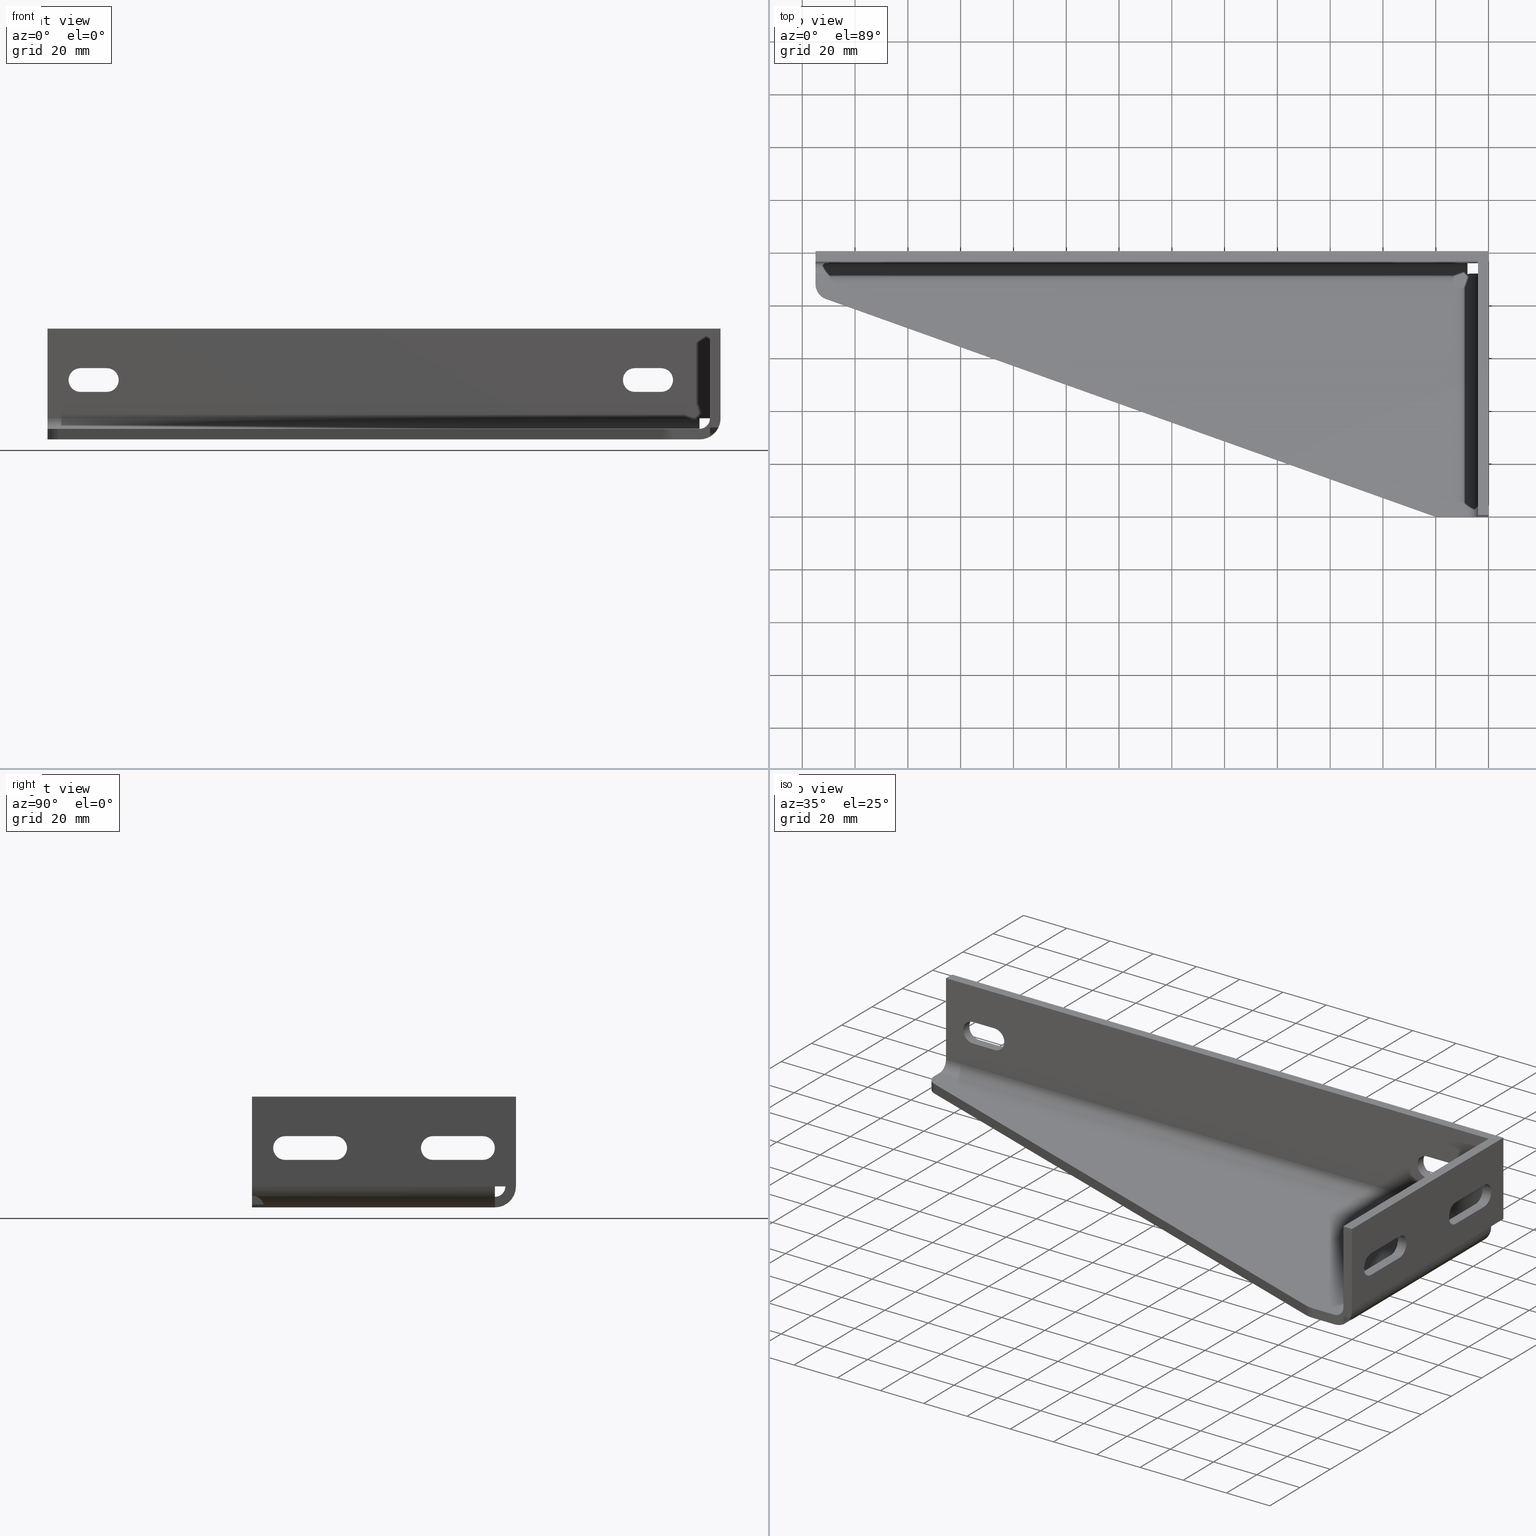
[diagram: canonical four-view strip — front | top / right | iso, engineering-drawing reading convention]
A machine part, canonical four-view strip (front | top / right | iso — engineering-drawing reading convention). The complete STEP part file that produces these views, byte-faithful:
ISO-10303-21;
HEADER;
/* Generated by software containing ST-Developer
 * from STEP Tools, Inc. (www.steptools.com) 
 */

FILE_DESCRIPTION(
/* description */ ('Konsole links 255'),
/* implementation_level */ '2;1');

FILE_NAME(
/* name */ 
'T:\\Produktinformationen\\MT\\B45\\3D-Files\\Konsole\\Syskomp 4125361
19 Konsole links l=255.stp',
/* time_stamp */ '2016-11-29T13:27:10+01:00',
/* author */ ('wheldmann'),
/* organization */ (''),
/* preprocessor_version */ 'ST-DEVELOPER v16.1',
/* originating_system */ 'Autodesk Inventor 2016',
/* authorisation */ '');

FILE_SCHEMA (('AUTOMOTIVE_DESIGN { 1 0 10303 214 3 1 1 }'));
ENDSEC;

DATA;
#10=MECHANICAL_DESIGN_GEOMETRIC_PRESENTATION_REPRESENTATION('',(#13),#1287);
#11=SHAPE_REPRESENTATION_RELATIONSHIP('SRR','None',#1296,#12);
#12=ADVANCED_BREP_SHAPE_REPRESENTATION('',(#14),#1286);
#13=STYLED_ITEM('',(#1306),#14);
#14=MANIFOLD_SOLID_BREP('Volumenk\X\F6rper1',#765);
#15=B_SPLINE_CURVE_WITH_KNOTS('',3,(#1124,#1125,#1126,#1127,#1128,#1129,
#1130,#1131,#1132,#1133,#1134,#1135),.UNSPECIFIED.,.F.,.F.,(4,2,2,2,2,4),
(1.0860490290445,1.2630342624638,1.4400194958831,1.53990969274269,1.63979988960228,
1.77188504398492),.UNSPECIFIED.);
#16=FACE_BOUND('',#117,.T.);
#17=FACE_BOUND('',#118,.T.);
#18=FACE_BOUND('',#146,.T.);
#19=FACE_BOUND('',#147,.T.);
#20=FACE_BOUND('',#150,.T.);
#21=FACE_BOUND('',#151,.T.);
#22=FACE_BOUND('',#154,.T.);
#23=FACE_BOUND('',#155,.T.);
#24=CIRCLE('',#772,4.5);
#25=CIRCLE('',#773,4.5);
#26=CIRCLE('',#775,4.5);
#27=CIRCLE('',#776,4.5);
#28=CIRCLE('',#778,4.5);
#29=CIRCLE('',#779,4.5);
#30=CIRCLE('',#781,4.5);
#31=CIRCLE('',#783,4.5);
#32=CIRCLE('',#785,4.5);
#33=CIRCLE('',#788,7.99999999999991);
#34=CIRCLE('',#789,3.99999999999988);
#35=CIRCLE('',#790,7.99999999999991);
#36=CIRCLE('',#792,10.);
#37=CIRCLE('',#793,10.);
#38=CIRCLE('',#796,6.);
#39=CIRCLE('',#798,6.);
#40=CIRCLE('',#801,4.5);
#41=CIRCLE('',#802,4.5);
#42=CIRCLE('',#805,4.5);
#43=CIRCLE('',#806,4.5);
#44=CIRCLE('',#809,4.5);
#45=CIRCLE('',#810,4.5);
#46=CIRCLE('',#813,4.5);
#47=CIRCLE('',#814,4.5);
#48=CIRCLE('',#817,8.00000000000011);
#49=CIRCLE('',#819,4.00000000000013);
#50=CIRCLE('',#824,4.);
#51=CIRCLE('',#825,8.);
#52=CIRCLE('',#827,8.00000000000001);
#53=CIRCLE('',#831,4.);
#54=CYLINDRICAL_SURFACE('',#771,4.5);
#55=CYLINDRICAL_SURFACE('',#774,4.5);
#56=CYLINDRICAL_SURFACE('',#780,4.5);
#57=CYLINDRICAL_SURFACE('',#782,4.5);
#58=CYLINDRICAL_SURFACE('',#784,4.5);
#59=CYLINDRICAL_SURFACE('',#791,10.);
#60=CYLINDRICAL_SURFACE('',#797,6.);
#61=CYLINDRICAL_SURFACE('',#800,4.5);
#62=CYLINDRICAL_SURFACE('',#804,4.5);
#63=CYLINDRICAL_SURFACE('',#808,4.5);
#64=CYLINDRICAL_SURFACE('',#812,4.5);
#65=CYLINDRICAL_SURFACE('',#816,7.99999999999998);
#66=CYLINDRICAL_SURFACE('',#821,3.99999999999997);
#67=CYLINDRICAL_SURFACE('',#826,8.);
#68=CYLINDRICAL_SURFACE('',#835,4.);
#69=FACE_OUTER_BOUND('',#110,.T.);
#70=FACE_OUTER_BOUND('',#111,.T.);
#71=FACE_OUTER_BOUND('',#112,.T.);
#72=FACE_OUTER_BOUND('',#113,.T.);
#73=FACE_OUTER_BOUND('',#114,.T.);
#74=FACE_OUTER_BOUND('',#115,.T.);
#75=FACE_OUTER_BOUND('',#116,.T.);
#76=FACE_OUTER_BOUND('',#119,.T.);
#77=FACE_OUTER_BOUND('',#120,.T.);
#78=FACE_OUTER_BOUND('',#121,.T.);
#79=FACE_OUTER_BOUND('',#122,.T.);
#80=FACE_OUTER_BOUND('',#123,.T.);
#81=FACE_OUTER_BOUND('',#124,.T.);
#82=FACE_OUTER_BOUND('',#125,.T.);
#83=FACE_OUTER_BOUND('',#126,.T.);
#84=FACE_OUTER_BOUND('',#127,.T.);
#85=FACE_OUTER_BOUND('',#128,.T.);
#86=FACE_OUTER_BOUND('',#129,.T.);
#87=FACE_OUTER_BOUND('',#130,.T.);
#88=FACE_OUTER_BOUND('',#131,.T.);
#89=FACE_OUTER_BOUND('',#132,.T.);
#90=FACE_OUTER_BOUND('',#133,.T.);
#91=FACE_OUTER_BOUND('',#134,.T.);
#92=FACE_OUTER_BOUND('',#135,.T.);
#93=FACE_OUTER_BOUND('',#136,.T.);
#94=FACE_OUTER_BOUND('',#137,.T.);
#95=FACE_OUTER_BOUND('',#138,.T.);
#96=FACE_OUTER_BOUND('',#139,.T.);
#97=FACE_OUTER_BOUND('',#140,.T.);
#98=FACE_OUTER_BOUND('',#141,.T.);
#99=FACE_OUTER_BOUND('',#142,.T.);
#100=FACE_OUTER_BOUND('',#143,.T.);
#101=FACE_OUTER_BOUND('',#144,.T.);
#102=FACE_OUTER_BOUND('',#145,.T.);
#103=FACE_OUTER_BOUND('',#148,.T.);
#104=FACE_OUTER_BOUND('',#149,.T.);
#105=FACE_OUTER_BOUND('',#152,.T.);
#106=FACE_OUTER_BOUND('',#153,.T.);
#107=FACE_OUTER_BOUND('',#156,.T.);
#108=FACE_OUTER_BOUND('',#157,.T.);
#109=FACE_OUTER_BOUND('',#158,.T.);
#110=EDGE_LOOP('',(#484,#485,#486,#487));
#111=EDGE_LOOP('',(#488,#489,#490,#491));
#112=EDGE_LOOP('',(#492,#493,#494,#495));
#113=EDGE_LOOP('',(#496,#497,#498,#499));
#114=EDGE_LOOP('',(#500,#501,#502,#503));
#115=EDGE_LOOP('',(#504,#505,#506,#507));
#116=EDGE_LOOP('',(#508,#509,#510,#511,#512));
#117=EDGE_LOOP('',(#513,#514,#515,#516));
#118=EDGE_LOOP('',(#517,#518,#519,#520));
#119=EDGE_LOOP('',(#521,#522,#523,#524));
#120=EDGE_LOOP('',(#525,#526,#527,#528));
#121=EDGE_LOOP('',(#529,#530,#531));
#122=EDGE_LOOP('',(#532,#533,#534));
#123=EDGE_LOOP('',(#535,#536,#537,#538,#539,#540,#541));
#124=EDGE_LOOP('',(#542,#543,#544,#545));
#125=EDGE_LOOP('',(#546,#547,#548,#549));
#126=EDGE_LOOP('',(#550,#551,#552,#553,#554,#555,#556));
#127=EDGE_LOOP('',(#557,#558,#559,#560));
#128=EDGE_LOOP('',(#561,#562,#563,#564));
#129=EDGE_LOOP('',(#565,#566,#567,#568));
#130=EDGE_LOOP('',(#569,#570,#571,#572));
#131=EDGE_LOOP('',(#573,#574,#575,#576));
#132=EDGE_LOOP('',(#577,#578,#579,#580));
#133=EDGE_LOOP('',(#581,#582,#583,#584));
#134=EDGE_LOOP('',(#585,#586,#587,#588));
#135=EDGE_LOOP('',(#589,#590,#591,#592));
#136=EDGE_LOOP('',(#593,#594,#595,#596));
#137=EDGE_LOOP('',(#597,#598,#599,#600,#601,#602,#603));
#138=EDGE_LOOP('',(#604,#605,#606,#607));
#139=EDGE_LOOP('',(#608,#609,#610,#611));
#140=EDGE_LOOP('',(#612,#613,#614,#615));
#141=EDGE_LOOP('',(#616,#617,#618,#619,#620,#621));
#142=EDGE_LOOP('',(#622,#623,#624,#625));
#143=EDGE_LOOP('',(#626,#627,#628,#629));
#144=EDGE_LOOP('',(#630,#631,#632,#633));
#145=EDGE_LOOP('',(#634,#635,#636,#637,#638));
#146=EDGE_LOOP('',(#639,#640,#641,#642));
#147=EDGE_LOOP('',(#643,#644,#645,#646));
#148=EDGE_LOOP('',(#647,#648,#649,#650));
#149=EDGE_LOOP('',(#651,#652,#653,#654,#655));
#150=EDGE_LOOP('',(#656,#657,#658,#659));
#151=EDGE_LOOP('',(#660,#661,#662,#663));
#152=EDGE_LOOP('',(#664,#665,#666,#667,#668,#669));
#153=EDGE_LOOP('',(#670,#671,#672,#673,#674));
#154=EDGE_LOOP('',(#675,#676,#677,#678));
#155=EDGE_LOOP('',(#679,#680,#681,#682));
#156=EDGE_LOOP('',(#683,#684,#685,#686));
#157=EDGE_LOOP('',(#687,#688,#689,#690));
#158=EDGE_LOOP('',(#691,#692,#693,#694,#695,#696,#697));
#159=LINE('',#1062,#235);
#160=LINE('',#1064,#236);
#161=LINE('',#1066,#237);
#162=LINE('',#1067,#238);
#163=LINE('',#1071,#239);
#164=LINE('',#1073,#240);
#165=LINE('',#1075,#241);
#166=LINE('',#1076,#242);
#167=LINE('',#1080,#243);
#168=LINE('',#1082,#244);
#169=LINE('',#1084,#245);
#170=LINE('',#1085,#246);
#171=LINE('',#1089,#247);
#172=LINE('',#1091,#248);
#173=LINE('',#1093,#249);
#174=LINE('',#1094,#250);
#175=LINE('',#1104,#251);
#176=LINE('',#1106,#252);
#177=LINE('',#1108,#253);
#178=LINE('',#1110,#254);
#179=LINE('',#1111,#255);
#180=LINE('',#1121,#256);
#181=LINE('',#1138,#257);
#182=LINE('',#1139,#258);
#183=LINE('',#1143,#259);
#184=LINE('',#1147,#260);
#185=LINE('',#1154,#261);
#186=LINE('',#1157,#262);
#187=LINE('',#1159,#263);
#188=LINE('',#1160,#264);
#189=LINE('',#1163,#265);
#190=LINE('',#1167,#266);
#191=LINE('',#1169,#267);
#192=LINE('',#1170,#268);
#193=LINE('',#1175,#269);
#194=LINE('',#1176,#270);
#195=LINE('',#1179,#271);
#196=LINE('',#1180,#272);
#197=LINE('',#1186,#273);
#198=LINE('',#1189,#274);
#199=LINE('',#1192,#275);
#200=LINE('',#1194,#276);
#201=LINE('',#1195,#277);
#202=LINE('',#1201,#278);
#203=LINE('',#1203,#279);
#204=LINE('',#1204,#280);
#205=LINE('',#1210,#281);
#206=LINE('',#1213,#282);
#207=LINE('',#1216,#283);
#208=LINE('',#1218,#284);
#209=LINE('',#1219,#285);
#210=LINE('',#1225,#286);
#211=LINE('',#1227,#287);
#212=LINE('',#1228,#288);
#213=LINE('',#1232,#289);
#214=LINE('',#1234,#290);
#215=LINE('',#1236,#291);
#216=LINE('',#1240,#292);
#217=LINE('',#1241,#293);
#218=LINE('',#1243,#294);
#219=LINE('',#1246,#295);
#220=LINE('',#1248,#296);
#221=LINE('',#1250,#297);
#222=LINE('',#1251,#298);
#223=LINE('',#1258,#299);
#224=LINE('',#1261,#300);
#225=LINE('',#1263,#301);
#226=LINE('',#1265,#302);
#227=LINE('',#1266,#303);
#228=LINE('',#1268,#304);
#229=LINE('',#1269,#305);
#230=LINE('',#1274,#306);
#231=LINE('',#1275,#307);
#232=LINE('',#1277,#308);
#233=LINE('',#1280,#309);
#234=LINE('',#1282,#310);
#235=VECTOR('',#842,19.);
#236=VECTOR('',#843,3.99999999999996);
#237=VECTOR('',#844,19.);
#238=VECTOR('',#845,3.99999999999999);
#239=VECTOR('',#848,19.);
#240=VECTOR('',#849,3.99999999999996);
#241=VECTOR('',#850,19.);
#242=VECTOR('',#851,3.99999999999996);
#243=VECTOR('',#854,19.);
#244=VECTOR('',#855,3.99999999999996);
#245=VECTOR('',#856,19.);
#246=VECTOR('',#857,3.99999999999999);
#247=VECTOR('',#860,19.);
#248=VECTOR('',#861,3.99999999999999);
#249=VECTOR('',#862,19.);
#250=VECTOR('',#863,3.99999999999999);
#251=VECTOR('',#878,96.);
#252=VECTOR('',#879,34.);
#253=VECTOR('',#880,4.);
#254=VECTOR('',#881,92.);
#255=VECTOR('',#882,33.9999999999999);
#256=VECTOR('',#897,3.19374728496901);
#257=VECTOR('',#902,3.42820323027591);
#258=VECTOR('',#903,4.37049787603259);
#259=VECTOR('',#908,3.99999999999999);
#260=VECTOR('',#911,4.);
#261=VECTOR('',#918,4.);
#262=VECTOR('',#921,4.);
#263=VECTOR('',#924,10.266474328774);
#264=VECTOR('',#925,10.266474328774);
#265=VECTOR('',#928,243.600984886949);
#266=VECTOR('',#931,3.77289491987311);
#267=VECTOR('',#932,247.);
#268=VECTOR('',#933,92.);
#269=VECTOR('',#938,4.);
#270=VECTOR('',#939,4.);
#271=VECTOR('',#942,3.77289491987311);
#272=VECTOR('',#943,4.);
#273=VECTOR('',#948,3.99999999999999);
#274=VECTOR('',#951,3.99999999999999);
#275=VECTOR('',#954,10.);
#276=VECTOR('',#955,10.);
#277=VECTOR('',#956,3.99999999999999);
#278=VECTOR('',#963,3.99999999999999);
#279=VECTOR('',#966,10.);
#280=VECTOR('',#967,10.);
#281=VECTOR('',#972,3.99999999999999);
#282=VECTOR('',#975,3.99999999999999);
#283=VECTOR('',#978,10.);
#284=VECTOR('',#979,10.);
#285=VECTOR('',#980,3.99999999999999);
#286=VECTOR('',#987,3.99999999999999);
#287=VECTOR('',#990,10.);
#288=VECTOR('',#991,10.);
#289=VECTOR('',#996,92.);
#290=VECTOR('',#999,3.99999999999999);
#291=VECTOR('',#1000,4.);
#292=VECTOR('',#1005,33.9999999999999);
#293=VECTOR('',#1006,3.99999999999999);
#294=VECTOR('',#1009,92.);
#295=VECTOR('',#1012,7.99999999999999);
#296=VECTOR('',#1013,3.99999999999998);
#297=VECTOR('',#1014,3.99999999999999);
#298=VECTOR('',#1015,7.99999999999997);
#299=VECTOR('',#1026,247.);
#300=VECTOR('',#1029,3.99999999999999);
#301=VECTOR('',#1030,34.);
#302=VECTOR('',#1031,3.99999999999999);
#303=VECTOR('',#1032,34.);
#304=VECTOR('',#1035,251.);
#305=VECTOR('',#1036,247.);
#306=VECTOR('',#1043,34.);
#307=VECTOR('',#1044,100.);
#308=VECTOR('',#1047,255.);
#309=VECTOR('',#1052,247.);
#310=VECTOR('',#1055,243.600984886949);
#311=VERTEX_POINT('',#1060);
#312=VERTEX_POINT('',#1061);
#313=VERTEX_POINT('',#1063);
#314=VERTEX_POINT('',#1065);
#315=VERTEX_POINT('',#1069);
#316=VERTEX_POINT('',#1070);
#317=VERTEX_POINT('',#1072);
#318=VERTEX_POINT('',#1074);
#319=VERTEX_POINT('',#1078);
#320=VERTEX_POINT('',#1079);
#321=VERTEX_POINT('',#1081);
#322=VERTEX_POINT('',#1083);
#323=VERTEX_POINT('',#1087);
#324=VERTEX_POINT('',#1088);
#325=VERTEX_POINT('',#1090);
#326=VERTEX_POINT('',#1092);
#327=VERTEX_POINT('',#1102);
#328=VERTEX_POINT('',#1103);
#329=VERTEX_POINT('',#1105);
#330=VERTEX_POINT('',#1107);
#331=VERTEX_POINT('',#1109);
#332=VERTEX_POINT('',#1119);
#333=VERTEX_POINT('',#1120);
#334=VERTEX_POINT('',#1122);
#335=VERTEX_POINT('',#1137);
#336=VERTEX_POINT('',#1141);
#337=VERTEX_POINT('',#1144);
#338=VERTEX_POINT('',#1146);
#339=VERTEX_POINT('',#1150);
#340=VERTEX_POINT('',#1151);
#341=VERTEX_POINT('',#1153);
#342=VERTEX_POINT('',#1155);
#343=VERTEX_POINT('',#1162);
#344=VERTEX_POINT('',#1164);
#345=VERTEX_POINT('',#1166);
#346=VERTEX_POINT('',#1168);
#347=VERTEX_POINT('',#1172);
#348=VERTEX_POINT('',#1173);
#349=VERTEX_POINT('',#1178);
#350=VERTEX_POINT('',#1182);
#351=VERTEX_POINT('',#1183);
#352=VERTEX_POINT('',#1185);
#353=VERTEX_POINT('',#1187);
#354=VERTEX_POINT('',#1191);
#355=VERTEX_POINT('',#1193);
#356=VERTEX_POINT('',#1197);
#357=VERTEX_POINT('',#1199);
#358=VERTEX_POINT('',#1206);
#359=VERTEX_POINT('',#1207);
#360=VERTEX_POINT('',#1209);
#361=VERTEX_POINT('',#1211);
#362=VERTEX_POINT('',#1215);
#363=VERTEX_POINT('',#1217);
#364=VERTEX_POINT('',#1221);
#365=VERTEX_POINT('',#1223);
#366=VERTEX_POINT('',#1230);
#367=VERTEX_POINT('',#1235);
#368=VERTEX_POINT('',#1239);
#369=VERTEX_POINT('',#1245);
#370=VERTEX_POINT('',#1247);
#371=VERTEX_POINT('',#1249);
#372=VERTEX_POINT('',#1256);
#373=VERTEX_POINT('',#1260);
#374=VERTEX_POINT('',#1262);
#375=VERTEX_POINT('',#1264);
#376=VERTEX_POINT('',#1273);
#377=EDGE_CURVE('',#311,#312,#159,.T.);
#378=EDGE_CURVE('',#313,#311,#160,.T.);
#379=EDGE_CURVE('',#314,#313,#161,.T.);
#380=EDGE_CURVE('',#314,#312,#162,.T.);
#381=EDGE_CURVE('',#315,#316,#163,.T.);
#382=EDGE_CURVE('',#317,#315,#164,.T.);
#383=EDGE_CURVE('',#318,#317,#165,.T.);
#384=EDGE_CURVE('',#316,#318,#166,.T.);
#385=EDGE_CURVE('',#319,#320,#167,.T.);
#386=EDGE_CURVE('',#321,#319,#168,.T.);
#387=EDGE_CURVE('',#322,#321,#169,.T.);
#388=EDGE_CURVE('',#322,#320,#170,.T.);
#389=EDGE_CURVE('',#323,#324,#171,.T.);
#390=EDGE_CURVE('',#325,#323,#172,.T.);
#391=EDGE_CURVE('',#326,#325,#173,.T.);
#392=EDGE_CURVE('',#326,#324,#174,.T.);
#393=EDGE_CURVE('',#312,#315,#24,.T.);
#394=EDGE_CURVE('',#317,#314,#25,.T.);
#395=EDGE_CURVE('',#321,#326,#26,.T.);
#396=EDGE_CURVE('',#324,#319,#27,.T.);
#397=EDGE_CURVE('',#327,#328,#175,.T.);
#398=EDGE_CURVE('',#329,#327,#176,.T.);
#399=EDGE_CURVE('',#329,#330,#177,.T.);
#400=EDGE_CURVE('',#330,#331,#178,.T.);
#401=EDGE_CURVE('',#328,#331,#179,.T.);
#402=EDGE_CURVE('',#313,#318,#28,.T.);
#403=EDGE_CURVE('',#325,#322,#29,.T.);
#404=EDGE_CURVE('',#320,#323,#30,.T.);
#405=EDGE_CURVE('',#316,#311,#31,.T.);
#406=EDGE_CURVE('',#332,#333,#180,.T.);
#407=EDGE_CURVE('',#334,#332,#32,.T.);
#408=EDGE_CURVE('',#333,#334,#15,.T.);
#409=EDGE_CURVE('',#335,#332,#181,.T.);
#410=EDGE_CURVE('',#334,#335,#182,.T.);
#411=EDGE_CURVE('',#333,#336,#33,.T.);
#412=EDGE_CURVE('',#331,#336,#183,.T.);
#413=EDGE_CURVE('',#331,#337,#34,.T.);
#414=EDGE_CURVE('',#338,#337,#184,.T.);
#415=EDGE_CURVE('',#338,#335,#35,.T.);
#416=EDGE_CURVE('',#339,#340,#36,.T.);
#417=EDGE_CURVE('',#340,#341,#185,.T.);
#418=EDGE_CURVE('',#341,#342,#37,.T.);
#419=EDGE_CURVE('',#342,#339,#186,.T.);
#420=EDGE_CURVE('',#342,#338,#187,.T.);
#421=EDGE_CURVE('',#337,#339,#188,.T.);
#422=EDGE_CURVE('',#343,#341,#189,.T.);
#423=EDGE_CURVE('',#344,#343,#38,.T.);
#424=EDGE_CURVE('',#345,#344,#190,.T.);
#425=EDGE_CURVE('',#345,#346,#191,.T.);
#426=EDGE_CURVE('',#346,#338,#192,.T.);
#427=EDGE_CURVE('',#347,#348,#39,.T.);
#428=EDGE_CURVE('',#348,#344,#193,.T.);
#429=EDGE_CURVE('',#343,#347,#194,.T.);
#430=EDGE_CURVE('',#348,#349,#195,.T.);
#431=EDGE_CURVE('',#349,#345,#196,.T.);
#432=EDGE_CURVE('',#350,#351,#40,.T.);
#433=EDGE_CURVE('',#352,#350,#197,.T.);
#434=EDGE_CURVE('',#353,#352,#41,.T.);
#435=EDGE_CURVE('',#353,#351,#198,.T.);
#436=EDGE_CURVE('',#351,#354,#199,.T.);
#437=EDGE_CURVE('',#355,#353,#200,.T.);
#438=EDGE_CURVE('',#355,#354,#201,.T.);
#439=EDGE_CURVE('',#354,#356,#42,.T.);
#440=EDGE_CURVE('',#357,#355,#43,.T.);
#441=EDGE_CURVE('',#357,#356,#202,.T.);
#442=EDGE_CURVE('',#356,#350,#203,.T.);
#443=EDGE_CURVE('',#352,#357,#204,.T.);
#444=EDGE_CURVE('',#358,#359,#44,.T.);
#445=EDGE_CURVE('',#360,#358,#205,.T.);
#446=EDGE_CURVE('',#361,#360,#45,.T.);
#447=EDGE_CURVE('',#361,#359,#206,.T.);
#448=EDGE_CURVE('',#359,#362,#207,.T.);
#449=EDGE_CURVE('',#363,#361,#208,.T.);
#450=EDGE_CURVE('',#363,#362,#209,.T.);
#451=EDGE_CURVE('',#362,#364,#46,.T.);
#452=EDGE_CURVE('',#365,#363,#47,.T.);
#453=EDGE_CURVE('',#365,#364,#210,.T.);
#454=EDGE_CURVE('',#364,#358,#211,.T.);
#455=EDGE_CURVE('',#360,#365,#212,.T.);
#456=EDGE_CURVE('',#366,#346,#48,.T.);
#457=EDGE_CURVE('',#336,#366,#213,.T.);
#458=EDGE_CURVE('',#366,#330,#214,.T.);
#459=EDGE_CURVE('',#367,#346,#215,.T.);
#460=EDGE_CURVE('',#330,#367,#49,.T.);
#461=EDGE_CURVE('',#336,#368,#216,.T.);
#462=EDGE_CURVE('',#328,#368,#217,.T.);
#463=EDGE_CURVE('',#337,#367,#218,.T.);
#464=EDGE_CURVE('',#366,#369,#219,.T.);
#465=EDGE_CURVE('',#370,#329,#220,.T.);
#466=EDGE_CURVE('',#370,#371,#221,.T.);
#467=EDGE_CURVE('',#369,#371,#222,.T.);
#468=EDGE_CURVE('',#367,#370,#50,.T.);
#469=EDGE_CURVE('',#371,#346,#51,.T.);
#470=EDGE_CURVE('',#372,#345,#52,.T.);
#471=EDGE_CURVE('',#371,#372,#223,.T.);
#472=EDGE_CURVE('',#372,#373,#224,.T.);
#473=EDGE_CURVE('',#374,#373,#225,.T.);
#474=EDGE_CURVE('',#374,#375,#226,.T.);
#475=EDGE_CURVE('',#375,#372,#227,.T.);
#476=EDGE_CURVE('',#327,#374,#228,.T.);
#477=EDGE_CURVE('',#373,#370,#229,.T.);
#478=EDGE_CURVE('',#373,#349,#53,.T.);
#479=EDGE_CURVE('',#369,#376,#230,.T.);
#480=EDGE_CURVE('',#368,#376,#231,.T.);
#481=EDGE_CURVE('',#376,#375,#232,.T.);
#482=EDGE_CURVE('',#367,#349,#233,.T.);
#483=EDGE_CURVE('',#340,#347,#234,.T.);
#484=ORIENTED_EDGE('',*,*,#377,.F.);
#485=ORIENTED_EDGE('',*,*,#378,.F.);
#486=ORIENTED_EDGE('',*,*,#379,.F.);
#487=ORIENTED_EDGE('',*,*,#380,.T.);
#488=ORIENTED_EDGE('',*,*,#381,.F.);
#489=ORIENTED_EDGE('',*,*,#382,.F.);
#490=ORIENTED_EDGE('',*,*,#383,.F.);
#491=ORIENTED_EDGE('',*,*,#384,.F.);
#492=ORIENTED_EDGE('',*,*,#385,.F.);
#493=ORIENTED_EDGE('',*,*,#386,.F.);
#494=ORIENTED_EDGE('',*,*,#387,.F.);
#495=ORIENTED_EDGE('',*,*,#388,.T.);
#496=ORIENTED_EDGE('',*,*,#389,.F.);
#497=ORIENTED_EDGE('',*,*,#390,.F.);
#498=ORIENTED_EDGE('',*,*,#391,.F.);
#499=ORIENTED_EDGE('',*,*,#392,.T.);
#500=ORIENTED_EDGE('',*,*,#382,.T.);
#501=ORIENTED_EDGE('',*,*,#393,.F.);
#502=ORIENTED_EDGE('',*,*,#380,.F.);
#503=ORIENTED_EDGE('',*,*,#394,.F.);
#504=ORIENTED_EDGE('',*,*,#392,.F.);
#505=ORIENTED_EDGE('',*,*,#395,.F.);
#506=ORIENTED_EDGE('',*,*,#386,.T.);
#507=ORIENTED_EDGE('',*,*,#396,.F.);
#508=ORIENTED_EDGE('',*,*,#397,.F.);
#509=ORIENTED_EDGE('',*,*,#398,.F.);
#510=ORIENTED_EDGE('',*,*,#399,.T.);
#511=ORIENTED_EDGE('',*,*,#400,.T.);
#512=ORIENTED_EDGE('',*,*,#401,.F.);
#513=ORIENTED_EDGE('',*,*,#394,.T.);
#514=ORIENTED_EDGE('',*,*,#379,.T.);
#515=ORIENTED_EDGE('',*,*,#402,.T.);
#516=ORIENTED_EDGE('',*,*,#383,.T.);
#517=ORIENTED_EDGE('',*,*,#391,.T.);
#518=ORIENTED_EDGE('',*,*,#403,.T.);
#519=ORIENTED_EDGE('',*,*,#387,.T.);
#520=ORIENTED_EDGE('',*,*,#395,.T.);
#521=ORIENTED_EDGE('',*,*,#390,.T.);
#522=ORIENTED_EDGE('',*,*,#404,.F.);
#523=ORIENTED_EDGE('',*,*,#388,.F.);
#524=ORIENTED_EDGE('',*,*,#403,.F.);
#525=ORIENTED_EDGE('',*,*,#378,.T.);
#526=ORIENTED_EDGE('',*,*,#405,.F.);
#527=ORIENTED_EDGE('',*,*,#384,.T.);
#528=ORIENTED_EDGE('',*,*,#402,.F.);
#529=ORIENTED_EDGE('',*,*,#406,.F.);
#530=ORIENTED_EDGE('',*,*,#407,.F.);
#531=ORIENTED_EDGE('',*,*,#408,.F.);
#532=ORIENTED_EDGE('',*,*,#409,.F.);
#533=ORIENTED_EDGE('',*,*,#410,.F.);
#534=ORIENTED_EDGE('',*,*,#407,.T.);
#535=ORIENTED_EDGE('',*,*,#409,.T.);
#536=ORIENTED_EDGE('',*,*,#406,.T.);
#537=ORIENTED_EDGE('',*,*,#411,.T.);
#538=ORIENTED_EDGE('',*,*,#412,.F.);
#539=ORIENTED_EDGE('',*,*,#413,.T.);
#540=ORIENTED_EDGE('',*,*,#414,.F.);
#541=ORIENTED_EDGE('',*,*,#415,.T.);
#542=ORIENTED_EDGE('',*,*,#416,.T.);
#543=ORIENTED_EDGE('',*,*,#417,.T.);
#544=ORIENTED_EDGE('',*,*,#418,.T.);
#545=ORIENTED_EDGE('',*,*,#419,.T.);
#546=ORIENTED_EDGE('',*,*,#419,.F.);
#547=ORIENTED_EDGE('',*,*,#420,.T.);
#548=ORIENTED_EDGE('',*,*,#414,.T.);
#549=ORIENTED_EDGE('',*,*,#421,.T.);
#550=ORIENTED_EDGE('',*,*,#418,.F.);
#551=ORIENTED_EDGE('',*,*,#422,.F.);
#552=ORIENTED_EDGE('',*,*,#423,.F.);
#553=ORIENTED_EDGE('',*,*,#424,.F.);
#554=ORIENTED_EDGE('',*,*,#425,.T.);
#555=ORIENTED_EDGE('',*,*,#426,.T.);
#556=ORIENTED_EDGE('',*,*,#420,.F.);
#557=ORIENTED_EDGE('',*,*,#427,.T.);
#558=ORIENTED_EDGE('',*,*,#428,.T.);
#559=ORIENTED_EDGE('',*,*,#423,.T.);
#560=ORIENTED_EDGE('',*,*,#429,.T.);
#561=ORIENTED_EDGE('',*,*,#428,.F.);
#562=ORIENTED_EDGE('',*,*,#430,.T.);
#563=ORIENTED_EDGE('',*,*,#431,.T.);
#564=ORIENTED_EDGE('',*,*,#424,.T.);
#565=ORIENTED_EDGE('',*,*,#432,.F.);
#566=ORIENTED_EDGE('',*,*,#433,.F.);
#567=ORIENTED_EDGE('',*,*,#434,.F.);
#568=ORIENTED_EDGE('',*,*,#435,.T.);
#569=ORIENTED_EDGE('',*,*,#436,.F.);
#570=ORIENTED_EDGE('',*,*,#435,.F.);
#571=ORIENTED_EDGE('',*,*,#437,.F.);
#572=ORIENTED_EDGE('',*,*,#438,.T.);
#573=ORIENTED_EDGE('',*,*,#439,.F.);
#574=ORIENTED_EDGE('',*,*,#438,.F.);
#575=ORIENTED_EDGE('',*,*,#440,.F.);
#576=ORIENTED_EDGE('',*,*,#441,.T.);
#577=ORIENTED_EDGE('',*,*,#442,.F.);
#578=ORIENTED_EDGE('',*,*,#441,.F.);
#579=ORIENTED_EDGE('',*,*,#443,.F.);
#580=ORIENTED_EDGE('',*,*,#433,.T.);
#581=ORIENTED_EDGE('',*,*,#444,.F.);
#582=ORIENTED_EDGE('',*,*,#445,.F.);
#583=ORIENTED_EDGE('',*,*,#446,.F.);
#584=ORIENTED_EDGE('',*,*,#447,.T.);
#585=ORIENTED_EDGE('',*,*,#448,.F.);
#586=ORIENTED_EDGE('',*,*,#447,.F.);
#587=ORIENTED_EDGE('',*,*,#449,.F.);
#588=ORIENTED_EDGE('',*,*,#450,.T.);
#589=ORIENTED_EDGE('',*,*,#451,.F.);
#590=ORIENTED_EDGE('',*,*,#450,.F.);
#591=ORIENTED_EDGE('',*,*,#452,.F.);
#592=ORIENTED_EDGE('',*,*,#453,.T.);
#593=ORIENTED_EDGE('',*,*,#454,.F.);
#594=ORIENTED_EDGE('',*,*,#453,.F.);
#595=ORIENTED_EDGE('',*,*,#455,.F.);
#596=ORIENTED_EDGE('',*,*,#445,.T.);
#597=ORIENTED_EDGE('',*,*,#410,.T.);
#598=ORIENTED_EDGE('',*,*,#415,.F.);
#599=ORIENTED_EDGE('',*,*,#426,.F.);
#600=ORIENTED_EDGE('',*,*,#456,.F.);
#601=ORIENTED_EDGE('',*,*,#457,.F.);
#602=ORIENTED_EDGE('',*,*,#411,.F.);
#603=ORIENTED_EDGE('',*,*,#408,.T.);
#604=ORIENTED_EDGE('',*,*,#458,.F.);
#605=ORIENTED_EDGE('',*,*,#456,.T.);
#606=ORIENTED_EDGE('',*,*,#459,.F.);
#607=ORIENTED_EDGE('',*,*,#460,.F.);
#608=ORIENTED_EDGE('',*,*,#412,.T.);
#609=ORIENTED_EDGE('',*,*,#461,.T.);
#610=ORIENTED_EDGE('',*,*,#462,.F.);
#611=ORIENTED_EDGE('',*,*,#401,.T.);
#612=ORIENTED_EDGE('',*,*,#400,.F.);
#613=ORIENTED_EDGE('',*,*,#460,.T.);
#614=ORIENTED_EDGE('',*,*,#463,.F.);
#615=ORIENTED_EDGE('',*,*,#413,.F.);
#616=ORIENTED_EDGE('',*,*,#464,.F.);
#617=ORIENTED_EDGE('',*,*,#458,.T.);
#618=ORIENTED_EDGE('',*,*,#399,.F.);
#619=ORIENTED_EDGE('',*,*,#465,.F.);
#620=ORIENTED_EDGE('',*,*,#466,.T.);
#621=ORIENTED_EDGE('',*,*,#467,.F.);
#622=ORIENTED_EDGE('',*,*,#468,.F.);
#623=ORIENTED_EDGE('',*,*,#459,.T.);
#624=ORIENTED_EDGE('',*,*,#469,.F.);
#625=ORIENTED_EDGE('',*,*,#466,.F.);
#626=ORIENTED_EDGE('',*,*,#469,.T.);
#627=ORIENTED_EDGE('',*,*,#425,.F.);
#628=ORIENTED_EDGE('',*,*,#470,.F.);
#629=ORIENTED_EDGE('',*,*,#471,.F.);
#630=ORIENTED_EDGE('',*,*,#472,.T.);
#631=ORIENTED_EDGE('',*,*,#473,.F.);
#632=ORIENTED_EDGE('',*,*,#474,.T.);
#633=ORIENTED_EDGE('',*,*,#475,.T.);
#634=ORIENTED_EDGE('',*,*,#398,.T.);
#635=ORIENTED_EDGE('',*,*,#476,.T.);
#636=ORIENTED_EDGE('',*,*,#473,.T.);
#637=ORIENTED_EDGE('',*,*,#477,.T.);
#638=ORIENTED_EDGE('',*,*,#465,.T.);
#639=ORIENTED_EDGE('',*,*,#440,.T.);
#640=ORIENTED_EDGE('',*,*,#437,.T.);
#641=ORIENTED_EDGE('',*,*,#434,.T.);
#642=ORIENTED_EDGE('',*,*,#443,.T.);
#643=ORIENTED_EDGE('',*,*,#452,.T.);
#644=ORIENTED_EDGE('',*,*,#449,.T.);
#645=ORIENTED_EDGE('',*,*,#446,.T.);
#646=ORIENTED_EDGE('',*,*,#455,.T.);
#647=ORIENTED_EDGE('',*,*,#472,.F.);
#648=ORIENTED_EDGE('',*,*,#470,.T.);
#649=ORIENTED_EDGE('',*,*,#431,.F.);
#650=ORIENTED_EDGE('',*,*,#478,.F.);
#651=ORIENTED_EDGE('',*,*,#464,.T.);
#652=ORIENTED_EDGE('',*,*,#479,.T.);
#653=ORIENTED_EDGE('',*,*,#480,.F.);
#654=ORIENTED_EDGE('',*,*,#461,.F.);
#655=ORIENTED_EDGE('',*,*,#457,.T.);
#656=ORIENTED_EDGE('',*,*,#389,.T.);
#657=ORIENTED_EDGE('',*,*,#396,.T.);
#658=ORIENTED_EDGE('',*,*,#385,.T.);
#659=ORIENTED_EDGE('',*,*,#404,.T.);
#660=ORIENTED_EDGE('',*,*,#393,.T.);
#661=ORIENTED_EDGE('',*,*,#381,.T.);
#662=ORIENTED_EDGE('',*,*,#405,.T.);
#663=ORIENTED_EDGE('',*,*,#377,.T.);
#664=ORIENTED_EDGE('',*,*,#481,.T.);
#665=ORIENTED_EDGE('',*,*,#474,.F.);
#666=ORIENTED_EDGE('',*,*,#476,.F.);
#667=ORIENTED_EDGE('',*,*,#397,.T.);
#668=ORIENTED_EDGE('',*,*,#462,.T.);
#669=ORIENTED_EDGE('',*,*,#480,.T.);
#670=ORIENTED_EDGE('',*,*,#467,.T.);
#671=ORIENTED_EDGE('',*,*,#471,.T.);
#672=ORIENTED_EDGE('',*,*,#475,.F.);
#673=ORIENTED_EDGE('',*,*,#481,.F.);
#674=ORIENTED_EDGE('',*,*,#479,.F.);
#675=ORIENTED_EDGE('',*,*,#439,.T.);
#676=ORIENTED_EDGE('',*,*,#442,.T.);
#677=ORIENTED_EDGE('',*,*,#432,.T.);
#678=ORIENTED_EDGE('',*,*,#436,.T.);
#679=ORIENTED_EDGE('',*,*,#451,.T.);
#680=ORIENTED_EDGE('',*,*,#454,.T.);
#681=ORIENTED_EDGE('',*,*,#444,.T.);
#682=ORIENTED_EDGE('',*,*,#448,.T.);
#683=ORIENTED_EDGE('',*,*,#468,.T.);
#684=ORIENTED_EDGE('',*,*,#477,.F.);
#685=ORIENTED_EDGE('',*,*,#478,.T.);
#686=ORIENTED_EDGE('',*,*,#482,.F.);
#687=ORIENTED_EDGE('',*,*,#417,.F.);
#688=ORIENTED_EDGE('',*,*,#483,.T.);
#689=ORIENTED_EDGE('',*,*,#429,.F.);
#690=ORIENTED_EDGE('',*,*,#422,.T.);
#691=ORIENTED_EDGE('',*,*,#416,.F.);
#692=ORIENTED_EDGE('',*,*,#421,.F.);
#693=ORIENTED_EDGE('',*,*,#463,.T.);
#694=ORIENTED_EDGE('',*,*,#482,.T.);
#695=ORIENTED_EDGE('',*,*,#430,.F.);
#696=ORIENTED_EDGE('',*,*,#427,.F.);
#697=ORIENTED_EDGE('',*,*,#483,.F.);
#698=PLANE('',#767);
#699=PLANE('',#768);
#700=PLANE('',#769);
#701=PLANE('',#770);
#702=PLANE('',#777);
#703=PLANE('',#786);
#704=PLANE('',#787);
#705=PLANE('',#794);
#706=PLANE('',#795);
#707=PLANE('',#799);
#708=PLANE('',#803);
#709=PLANE('',#807);
#710=PLANE('',#811);
#711=PLANE('',#815);
#712=PLANE('',#818);
#713=PLANE('',#820);
#714=PLANE('',#822);
#715=PLANE('',#823);
#716=PLANE('',#828);
#717=PLANE('',#829);
#718=PLANE('',#830);
#719=PLANE('',#832);
#720=PLANE('',#833);
#721=PLANE('',#834);
#722=PLANE('',#836);
#723=PLANE('',#837);
#724=ADVANCED_FACE('',(#69),#698,.F.);
#725=ADVANCED_FACE('',(#70),#699,.F.);
#726=ADVANCED_FACE('',(#71),#700,.F.);
#727=ADVANCED_FACE('',(#72),#701,.F.);
#728=ADVANCED_FACE('',(#73),#54,.F.);
#729=ADVANCED_FACE('',(#74),#55,.F.);
#730=ADVANCED_FACE('',(#75,#16,#17),#702,.T.);
#731=ADVANCED_FACE('',(#76),#56,.F.);
#732=ADVANCED_FACE('',(#77),#57,.F.);
#733=ADVANCED_FACE('',(#78),#58,.F.);
#734=ADVANCED_FACE('',(#79),#703,.T.);
#735=ADVANCED_FACE('',(#80),#704,.T.);
#736=ADVANCED_FACE('',(#81),#59,.T.);
#737=ADVANCED_FACE('',(#82),#705,.T.);
#738=ADVANCED_FACE('',(#83),#706,.F.);
#739=ADVANCED_FACE('',(#84),#60,.T.);
#740=ADVANCED_FACE('',(#85),#707,.T.);
#741=ADVANCED_FACE('',(#86),#61,.F.);
#742=ADVANCED_FACE('',(#87),#708,.F.);
#743=ADVANCED_FACE('',(#88),#62,.F.);
#744=ADVANCED_FACE('',(#89),#709,.F.);
#745=ADVANCED_FACE('',(#90),#63,.F.);
#746=ADVANCED_FACE('',(#91),#710,.F.);
#747=ADVANCED_FACE('',(#92),#64,.F.);
#748=ADVANCED_FACE('',(#93),#711,.F.);
#749=ADVANCED_FACE('',(#94),#65,.T.);
#750=ADVANCED_FACE('',(#95),#712,.T.);
#751=ADVANCED_FACE('',(#96),#713,.T.);
#752=ADVANCED_FACE('',(#97),#66,.F.);
#753=ADVANCED_FACE('',(#98),#714,.F.);
#754=ADVANCED_FACE('',(#99),#715,.T.);
#755=ADVANCED_FACE('',(#100),#67,.T.);
#756=ADVANCED_FACE('',(#101),#716,.T.);
#757=ADVANCED_FACE('',(#102,#18,#19),#717,.T.);
#758=ADVANCED_FACE('',(#103),#718,.T.);
#759=ADVANCED_FACE('',(#104,#20,#21),#719,.T.);
#760=ADVANCED_FACE('',(#105),#720,.T.);
#761=ADVANCED_FACE('',(#106,#22,#23),#721,.F.);
#762=ADVANCED_FACE('',(#107),#68,.F.);
#763=ADVANCED_FACE('',(#108),#722,.T.);
#764=ADVANCED_FACE('',(#109),#723,.T.);
#765=CLOSED_SHELL('',(#724,#725,#726,#727,#728,#729,#730,#731,#732,#733,
#734,#735,#736,#737,#738,#739,#740,#741,#742,#743,#744,#745,#746,#747,#748,
#749,#750,#751,#752,#753,#754,#755,#756,#757,#758,#759,#760,#761,#762,#763,
#764));
#766=AXIS2_PLACEMENT_3D('placement',#1058,#838,#839);
#767=AXIS2_PLACEMENT_3D('',#1059,#840,#841);
#768=AXIS2_PLACEMENT_3D('',#1068,#846,#847);
#769=AXIS2_PLACEMENT_3D('',#1077,#852,#853);
#770=AXIS2_PLACEMENT_3D('',#1086,#858,#859);
#771=AXIS2_PLACEMENT_3D('',#1095,#864,#865);
#772=AXIS2_PLACEMENT_3D('',#1096,#866,#867);
#773=AXIS2_PLACEMENT_3D('',#1097,#868,#869);
#774=AXIS2_PLACEMENT_3D('',#1098,#870,#871);
#775=AXIS2_PLACEMENT_3D('',#1099,#872,#873);
#776=AXIS2_PLACEMENT_3D('',#1100,#874,#875);
#777=AXIS2_PLACEMENT_3D('',#1101,#876,#877);
#778=AXIS2_PLACEMENT_3D('',#1112,#883,#884);
#779=AXIS2_PLACEMENT_3D('',#1113,#885,#886);
#780=AXIS2_PLACEMENT_3D('',#1114,#887,#888);
#781=AXIS2_PLACEMENT_3D('',#1115,#889,#890);
#782=AXIS2_PLACEMENT_3D('',#1116,#891,#892);
#783=AXIS2_PLACEMENT_3D('',#1117,#893,#894);
#784=AXIS2_PLACEMENT_3D('',#1118,#895,#896);
#785=AXIS2_PLACEMENT_3D('',#1123,#898,#899);
#786=AXIS2_PLACEMENT_3D('',#1136,#900,#901);
#787=AXIS2_PLACEMENT_3D('',#1140,#904,#905);
#788=AXIS2_PLACEMENT_3D('',#1142,#906,#907);
#789=AXIS2_PLACEMENT_3D('',#1145,#909,#910);
#790=AXIS2_PLACEMENT_3D('',#1148,#912,#913);
#791=AXIS2_PLACEMENT_3D('',#1149,#914,#915);
#792=AXIS2_PLACEMENT_3D('',#1152,#916,#917);
#793=AXIS2_PLACEMENT_3D('',#1156,#919,#920);
#794=AXIS2_PLACEMENT_3D('',#1158,#922,#923);
#795=AXIS2_PLACEMENT_3D('',#1161,#926,#927);
#796=AXIS2_PLACEMENT_3D('',#1165,#929,#930);
#797=AXIS2_PLACEMENT_3D('',#1171,#934,#935);
#798=AXIS2_PLACEMENT_3D('',#1174,#936,#937);
#799=AXIS2_PLACEMENT_3D('',#1177,#940,#941);
#800=AXIS2_PLACEMENT_3D('',#1181,#944,#945);
#801=AXIS2_PLACEMENT_3D('',#1184,#946,#947);
#802=AXIS2_PLACEMENT_3D('',#1188,#949,#950);
#803=AXIS2_PLACEMENT_3D('',#1190,#952,#953);
#804=AXIS2_PLACEMENT_3D('',#1196,#957,#958);
#805=AXIS2_PLACEMENT_3D('',#1198,#959,#960);
#806=AXIS2_PLACEMENT_3D('',#1200,#961,#962);
#807=AXIS2_PLACEMENT_3D('',#1202,#964,#965);
#808=AXIS2_PLACEMENT_3D('',#1205,#968,#969);
#809=AXIS2_PLACEMENT_3D('',#1208,#970,#971);
#810=AXIS2_PLACEMENT_3D('',#1212,#973,#974);
#811=AXIS2_PLACEMENT_3D('',#1214,#976,#977);
#812=AXIS2_PLACEMENT_3D('',#1220,#981,#982);
#813=AXIS2_PLACEMENT_3D('',#1222,#983,#984);
#814=AXIS2_PLACEMENT_3D('',#1224,#985,#986);
#815=AXIS2_PLACEMENT_3D('',#1226,#988,#989);
#816=AXIS2_PLACEMENT_3D('',#1229,#992,#993);
#817=AXIS2_PLACEMENT_3D('',#1231,#994,#995);
#818=AXIS2_PLACEMENT_3D('',#1233,#997,#998);
#819=AXIS2_PLACEMENT_3D('',#1237,#1001,#1002);
#820=AXIS2_PLACEMENT_3D('',#1238,#1003,#1004);
#821=AXIS2_PLACEMENT_3D('',#1242,#1007,#1008);
#822=AXIS2_PLACEMENT_3D('',#1244,#1010,#1011);
#823=AXIS2_PLACEMENT_3D('',#1252,#1016,#1017);
#824=AXIS2_PLACEMENT_3D('',#1253,#1018,#1019);
#825=AXIS2_PLACEMENT_3D('',#1254,#1020,#1021);
#826=AXIS2_PLACEMENT_3D('',#1255,#1022,#1023);
#827=AXIS2_PLACEMENT_3D('',#1257,#1024,#1025);
#828=AXIS2_PLACEMENT_3D('',#1259,#1027,#1028);
#829=AXIS2_PLACEMENT_3D('',#1267,#1033,#1034);
#830=AXIS2_PLACEMENT_3D('',#1270,#1037,#1038);
#831=AXIS2_PLACEMENT_3D('',#1271,#1039,#1040);
#832=AXIS2_PLACEMENT_3D('',#1272,#1041,#1042);
#833=AXIS2_PLACEMENT_3D('',#1276,#1045,#1046);
#834=AXIS2_PLACEMENT_3D('',#1278,#1048,#1049);
#835=AXIS2_PLACEMENT_3D('',#1279,#1050,#1051);
#836=AXIS2_PLACEMENT_3D('',#1281,#1053,#1054);
#837=AXIS2_PLACEMENT_3D('',#1283,#1056,#1057);
#838=DIRECTION('axis',(0.,0.,1.));
#839=DIRECTION('refdir',(1.,0.,0.));
#840=DIRECTION('center_axis',(-1.55431223447522E-15,-7.72329060608802E-16,
1.));
#841=DIRECTION('ref_axis',(1.,0.,1.77635683940025E-15));
#842=DIRECTION('',(1.71597531180121E-15,1.,7.72329060608804E-16));
#843=DIRECTION('',(1.,-1.70076183204162E-15,1.5993479553445E-15));
#844=DIRECTION('',(-1.70076183204162E-15,-1.,-7.72329060608804E-16));
#845=DIRECTION('',(1.,-1.70076183204162E-15,1.5993479553445E-15));
#846=DIRECTION('center_axis',(1.55431223447522E-15,7.72329060608802E-16,
-1.));
#847=DIRECTION('ref_axis',(-1.,0.,-1.77635683940025E-15));
#848=DIRECTION('',(-1.71597531180121E-15,-1.,-7.72329060608804E-16));
#849=DIRECTION('',(1.,-1.70076183204162E-15,1.5993479553445E-15));
#850=DIRECTION('',(1.70076183204162E-15,1.,7.72329060608804E-16));
#851=DIRECTION('',(-1.,1.70076183204162E-15,-1.5993479553445E-15));
#852=DIRECTION('center_axis',(-1.55431223447522E-15,-7.72329060608802E-16,
1.));
#853=DIRECTION('ref_axis',(1.,0.,1.77635683940025E-15));
#854=DIRECTION('',(1.71597531180121E-15,1.,7.72329060608804E-16));
#855=DIRECTION('',(1.,-1.70076183204162E-15,1.5993479553445E-15));
#856=DIRECTION('',(-1.70076183204162E-15,-1.,-7.72329060608804E-16));
#857=DIRECTION('',(1.,-1.70076183204162E-15,1.5993479553445E-15));
#858=DIRECTION('center_axis',(1.55431223447522E-15,7.72329060608802E-16,
-1.));
#859=DIRECTION('ref_axis',(-1.,0.,-1.77635683940025E-15));
#860=DIRECTION('',(-1.71597531180121E-15,-1.,-7.72329060608804E-16));
#861=DIRECTION('',(1.,-1.70076183204162E-15,1.5993479553445E-15));
#862=DIRECTION('',(1.70076183204162E-15,1.,7.72329060608804E-16));
#863=DIRECTION('',(1.,-1.70076183204162E-15,1.5993479553445E-15));
#864=DIRECTION('center_axis',(-1.,1.70076183204162E-15,-1.5993479553445E-15));
#865=DIRECTION('ref_axis',(-1.5993479553445E-15,-7.72329060608801E-16,1.));
#866=DIRECTION('center_axis',(-1.,1.71597531180121E-15,-1.62980892768505E-15));
#867=DIRECTION('ref_axis',(-1.62980892768505E-15,-7.72329060608801E-16,
1.));
#868=DIRECTION('center_axis',(1.,-1.70076183204162E-15,1.5993479553445E-15));
#869=DIRECTION('ref_axis',(-1.5993479553445E-15,-7.72329060608801E-16,1.));
#870=DIRECTION('center_axis',(-1.,1.70076183204162E-15,-1.5993479553445E-15));
#871=DIRECTION('ref_axis',(-1.5993479553445E-15,-7.72329060608801E-16,1.));
#872=DIRECTION('center_axis',(1.,-1.70076183204162E-15,1.5993479553445E-15));
#873=DIRECTION('ref_axis',(-1.5993479553445E-15,-7.72329060608801E-16,1.));
#874=DIRECTION('center_axis',(-1.,1.71597531180121E-15,-1.62980892768505E-15));
#875=DIRECTION('ref_axis',(-1.62980892768505E-15,-7.72329060608801E-16,
1.));
#876=DIRECTION('center_axis',(-1.,1.70076183204162E-15,-1.5993479553445E-15));
#877=DIRECTION('ref_axis',(-1.77635683940025E-15,0.,1.));
#878=DIRECTION('',(0.,-1.,-8.03222223033156E-16));
#879=DIRECTION('',(-2.089831575765E-15,-1.09209284292716E-16,1.));
#880=DIRECTION('',(-1.49554588919309E-59,-1.,-8.03222223033156E-16));
#881=DIRECTION('',(-1.70076183204162E-15,-1.,-2.30768365885029E-30));
#882=DIRECTION('',(7.94426253176225E-15,-3.88217367459135E-30,-1.));
#883=DIRECTION('center_axis',(1.,-1.70076183204162E-15,1.5993479553445E-15));
#884=DIRECTION('ref_axis',(-1.5993479553445E-15,-7.72329060608801E-16,1.));
#885=DIRECTION('center_axis',(1.,-1.70076183204162E-15,1.5993479553445E-15));
#886=DIRECTION('ref_axis',(-1.5993479553445E-15,-7.72329060608801E-16,1.));
#887=DIRECTION('center_axis',(-1.,1.70076183204162E-15,-1.5993479553445E-15));
#888=DIRECTION('ref_axis',(-1.5993479553445E-15,-7.72329060608801E-16,1.));
#889=DIRECTION('center_axis',(-1.,1.71597531180121E-15,-1.62980892768505E-15));
#890=DIRECTION('ref_axis',(-1.62980892768505E-15,-7.72329060608801E-16,
1.));
#891=DIRECTION('center_axis',(-1.,1.70076183204162E-15,-1.5993479553445E-15));
#892=DIRECTION('ref_axis',(-1.5993479553445E-15,-7.72329060608801E-16,1.));
#893=DIRECTION('center_axis',(-1.,1.71597531180121E-15,-1.62980892768505E-15));
#894=DIRECTION('ref_axis',(-1.62980892768505E-15,-7.72329060608801E-16,
1.));
#895=DIRECTION('center_axis',(-1.,1.70076183204162E-15,-1.5993479553445E-15));
#896=DIRECTION('ref_axis',(-1.5993479553445E-15,-7.72329060608801E-16,1.));
#897=DIRECTION('',(1.,-1.70076183204162E-15,1.5993479553445E-15));
#898=DIRECTION('center_axis',(1.,-1.70076183204162E-15,1.5993479553445E-15));
#899=DIRECTION('ref_axis',(-1.5993479553445E-15,-7.72329060608801E-16,1.));
#900=DIRECTION('center_axis',(1.,-1.70076183204162E-15,1.5993479553445E-15));
#901=DIRECTION('ref_axis',(1.77635683940025E-15,0.,-1.));
#902=DIRECTION('',(-1.5993479553445E-15,5.682025358114E-31,1.));
#903=DIRECTION('',(-3.5527136788005E-16,-1.,0.));
#904=DIRECTION('center_axis',(-3.5527136788005E-16,-1.,0.));
#905=DIRECTION('ref_axis',(0.,0.,-1.));
#906=DIRECTION('center_axis',(-3.5527136788005E-16,-1.,0.));
#907=DIRECTION('ref_axis',(-8.88178419700135E-15,3.15544362088408E-30,-1.));
#908=DIRECTION('',(1.,-3.5527136788005E-16,1.71512449944288E-15));
#909=DIRECTION('center_axis',(3.5527136788005E-16,1.,0.));
#910=DIRECTION('ref_axis',(1.,-3.5527136788005E-16,1.66533453693779E-15));
#911=DIRECTION('',(0.,0.,1.));
#912=DIRECTION('center_axis',(-3.5527136788005E-16,-1.,0.));
#913=DIRECTION('ref_axis',(-8.88178419700135E-15,3.15544362088408E-30,-1.));
#914=DIRECTION('center_axis',(0.,0.,1.));
#915=DIRECTION('ref_axis',(-0.170805121882701,-0.985304831175934,0.));
#916=DIRECTION('center_axis',(0.,0.,-1.));
#917=DIRECTION('ref_axis',(-0.170805121882701,-0.985304831175934,0.));
#918=DIRECTION('',(0.,0.,-1.));
#919=DIRECTION('center_axis',(0.,0.,1.));
#920=DIRECTION('ref_axis',(-0.170805121882701,-0.985304831175934,0.));
#921=DIRECTION('',(0.,0.,1.));
#922=DIRECTION('center_axis',(0.,-1.,0.));
#923=DIRECTION('ref_axis',(0.,0.,-1.));
#924=DIRECTION('',(1.,0.,0.));
#925=DIRECTION('',(-1.,0.,0.));
#926=DIRECTION('center_axis',(0.,0.,1.));
#927=DIRECTION('ref_axis',(1.,0.,0.));
#928=DIRECTION('',(0.941651220677272,-0.336590223561238,0.));
#929=DIRECTION('center_axis',(0.,0.,1.));
#930=DIRECTION('ref_axis',(-0.817493187605022,-0.575938267715717,0.));
#931=DIRECTION('',(3.5527136788005E-16,-1.,0.));
#932=DIRECTION('',(1.,0.,0.));
#933=DIRECTION('',(0.,-1.,0.));
#934=DIRECTION('center_axis',(0.,0.,1.));
#935=DIRECTION('ref_axis',(-0.817493187605022,-0.575938267715717,0.));
#936=DIRECTION('center_axis',(0.,0.,-1.));
#937=DIRECTION('ref_axis',(-0.817493187605022,-0.575938267715717,0.));
#938=DIRECTION('',(0.,0.,-1.));
#939=DIRECTION('',(0.,0.,1.));
#940=DIRECTION('center_axis',(-1.,-3.5527136788005E-16,0.));
#941=DIRECTION('ref_axis',(0.,0.,1.));
#942=DIRECTION('',(-3.5527136788005E-16,1.,0.));
#943=DIRECTION('',(0.,0.,-1.));
#944=DIRECTION('center_axis',(0.,1.,0.));
#945=DIRECTION('ref_axis',(1.,0.,1.11757439347301E-34));
#946=DIRECTION('center_axis',(-1.02333276947182E-18,-1.,-1.09209284292716E-16));
#947=DIRECTION('ref_axis',(1.,-1.02333276947182E-18,6.20081412741389E-49));
#948=DIRECTION('',(0.,1.,0.));
#949=DIRECTION('center_axis',(-1.02333276947183E-18,1.,1.09209284292716E-16));
#950=DIRECTION('ref_axis',(1.,1.02333276947183E-18,2.23514878694602E-34));
#951=DIRECTION('',(0.,1.,0.));
#952=DIRECTION('center_axis',(-4.44089209850063E-16,0.,-1.));
#953=DIRECTION('ref_axis',(-1.,0.,8.88178419700125E-16));
#954=DIRECTION('',(1.,-1.02333276947177E-18,-4.44089209850063E-16));
#955=DIRECTION('',(-1.,-1.02333276947187E-18,4.44089209850063E-16));
#956=DIRECTION('',(0.,1.,0.));
#957=DIRECTION('center_axis',(0.,1.,0.));
#958=DIRECTION('ref_axis',(1.,0.,1.11757439347301E-34));
#959=DIRECTION('center_axis',(-1.02333276947182E-18,-1.,-1.09209284292716E-16));
#960=DIRECTION('ref_axis',(1.,-1.02333276947182E-18,6.20081412741389E-49));
#961=DIRECTION('center_axis',(-1.02333276947183E-18,1.,1.09209284292716E-16));
#962=DIRECTION('ref_axis',(1.,1.02333276947183E-18,2.23514878694602E-34));
#963=DIRECTION('',(0.,1.,0.));
#964=DIRECTION('center_axis',(2.22044604925031E-16,0.,1.));
#965=DIRECTION('ref_axis',(1.,0.,0.));
#966=DIRECTION('',(-1.,1.02333276947179E-18,2.22044604925031E-16));
#967=DIRECTION('',(1.,1.02333276947185E-18,-2.22044604925031E-16));
#968=DIRECTION('center_axis',(0.,1.,0.));
#969=DIRECTION('ref_axis',(1.,0.,1.11757439347301E-34));
#970=DIRECTION('center_axis',(-1.02333276947182E-18,-1.,-1.09209284292716E-16));
#971=DIRECTION('ref_axis',(1.,-1.02333276947182E-18,6.20081412741389E-49));
#972=DIRECTION('',(0.,1.,0.));
#973=DIRECTION('center_axis',(-1.02333276947183E-18,1.,1.09209284292716E-16));
#974=DIRECTION('ref_axis',(1.,1.02333276947183E-18,2.23514878694602E-34));
#975=DIRECTION('',(0.,1.,0.));
#976=DIRECTION('center_axis',(1.11757439347301E-34,0.,-1.));
#977=DIRECTION('ref_axis',(-1.,0.,0.));
#978=DIRECTION('',(1.,-1.02333276947182E-18,1.11757439347301E-34));
#979=DIRECTION('',(-1.,-1.02333276947183E-18,-1.11757439347301E-34));
#980=DIRECTION('',(0.,1.,0.));
#981=DIRECTION('center_axis',(0.,1.,0.));
#982=DIRECTION('ref_axis',(1.,0.,1.11757439347301E-34));
#983=DIRECTION('center_axis',(-1.02333276947182E-18,-1.,-1.09209284292716E-16));
#984=DIRECTION('ref_axis',(1.,-1.02333276947182E-18,6.20081412741389E-49));
#985=DIRECTION('center_axis',(-1.02333276947183E-18,1.,1.09209284292716E-16));
#986=DIRECTION('ref_axis',(1.,1.02333276947183E-18,2.23514878694602E-34));
#987=DIRECTION('',(0.,1.,0.));
#988=DIRECTION('center_axis',(-1.11757439347301E-34,0.,1.));
#989=DIRECTION('ref_axis',(1.,0.,0.));
#990=DIRECTION('',(-1.,1.02333276947182E-18,-1.11757439347301E-34));
#991=DIRECTION('',(1.,1.02333276947183E-18,1.11757439347301E-34));
#992=DIRECTION('center_axis',(-3.5527136788005E-16,-1.,0.));
#993=DIRECTION('ref_axis',(0.,0.,-1.));
#994=DIRECTION('center_axis',(3.5527136788005E-16,1.,0.));
#995=DIRECTION('ref_axis',(1.,-3.5527136788005E-16,-5.41233724504756E-15));
#996=DIRECTION('',(1.71597531180121E-15,1.,2.33377667070774E-30));
#997=DIRECTION('center_axis',(3.5527136788005E-16,1.,0.));
#998=DIRECTION('ref_axis',(0.,0.,1.));
#999=DIRECTION('',(-1.,3.5527136788005E-16,-1.71512449944288E-15));
#1000=DIRECTION('',(0.,0.,-1.));
#1001=DIRECTION('center_axis',(3.5527136788005E-16,1.,0.));
#1002=DIRECTION('ref_axis',(1.,-3.5527136788005E-16,-5.27355936696932E-15));
#1003=DIRECTION('center_axis',(-3.5527136788005E-16,-1.,0.));
#1004=DIRECTION('ref_axis',(1.,0.,1.77635683940025E-15));
#1005=DIRECTION('',(-1.71512449944288E-15,5.91645678915759E-31,1.));
#1006=DIRECTION('',(1.,-3.5527136788005E-16,1.71512449944288E-15));
#1007=DIRECTION('center_axis',(-3.5527136788005E-16,-1.,0.));
#1008=DIRECTION('ref_axis',(0.,0.,-1.));
#1009=DIRECTION('',(0.,1.,0.));
#1010=DIRECTION('center_axis',(0.,-1.66533453693773E-15,1.));
#1011=DIRECTION('ref_axis',(1.,0.,0.));
#1012=DIRECTION('',(1.49554588919309E-59,1.,8.03222223033156E-16));
#1013=DIRECTION('',(1.,1.02333276947183E-18,-6.26610600298134E-35));
#1014=DIRECTION('',(0.,1.,1.66533453693773E-15));
#1015=DIRECTION('',(-1.,1.02333276947182E-18,-6.26610600298129E-35));
#1016=DIRECTION('center_axis',(1.,1.73950294196941E-27,-1.14995784608259E-27));
#1017=DIRECTION('ref_axis',(0.,0.,-1.));
#1018=DIRECTION('center_axis',(1.,1.73950294196941E-27,-1.14995784608259E-27));
#1019=DIRECTION('ref_axis',(-1.14995784608259E-27,-2.00035505640147E-54,
-1.));
#1020=DIRECTION('center_axis',(-1.,-1.73950294196941E-27,1.14995784608259E-27));
#1021=DIRECTION('ref_axis',(-1.14995784608259E-27,-2.00035505640147E-54,
-1.));
#1022=DIRECTION('center_axis',(1.,0.,0.));
#1023=DIRECTION('ref_axis',(0.,0.,-1.));
#1024=DIRECTION('center_axis',(-1.,0.,0.));
#1025=DIRECTION('ref_axis',(0.,1.,0.));
#1026=DIRECTION('',(-1.,1.02333276947182E-18,-6.26610600298129E-35));
#1027=DIRECTION('center_axis',(-1.,0.,0.));
#1028=DIRECTION('ref_axis',(0.,-1.,0.));
#1029=DIRECTION('',(0.,-1.,6.12323399573677E-17));
#1030=DIRECTION('',(0.,0.,-1.));
#1031=DIRECTION('',(0.,1.,-6.12323399573677E-17));
#1032=DIRECTION('',(0.,0.,-1.));
#1033=DIRECTION('center_axis',(1.02333276947183E-18,-1.,-1.09209284292716E-16));
#1034=DIRECTION('ref_axis',(1.,0.,0.));
#1035=DIRECTION('',(-1.,0.,0.));
#1036=DIRECTION('',(1.,1.02333276947183E-18,-6.26610600298134E-35));
#1037=DIRECTION('center_axis',(-1.,0.,0.));
#1038=DIRECTION('ref_axis',(0.,0.,1.));
#1039=DIRECTION('center_axis',(-1.,0.,0.));
#1040=DIRECTION('ref_axis',(0.,1.,0.));
#1041=DIRECTION('center_axis',(1.,0.,0.));
#1042=DIRECTION('ref_axis',(0.,1.,0.));
#1043=DIRECTION('',(0.,6.12323399573677E-17,1.));
#1044=DIRECTION('',(0.,1.,8.03222223033156E-16));
#1045=DIRECTION('center_axis',(0.,6.12323399573677E-17,1.));
#1046=DIRECTION('ref_axis',(0.,-1.,0.));
#1047=DIRECTION('',(-1.,0.,0.));
#1048=DIRECTION('center_axis',(-1.02333276947182E-18,-1.,-1.09209284292716E-16));
#1049=DIRECTION('ref_axis',(1.,-1.02333276947182E-18,0.));
#1050=DIRECTION('center_axis',(1.,0.,0.));
#1051=DIRECTION('ref_axis',(0.,0.,-1.));
#1052=DIRECTION('',(-1.,0.,0.));
#1053=DIRECTION('center_axis',(-0.336590223561238,-0.941651220677272,0.));
#1054=DIRECTION('ref_axis',(0.,0.,-1.));
#1055=DIRECTION('',(-0.941651220677272,0.336590223561238,0.));
#1056=DIRECTION('center_axis',(0.,0.,1.));
#1057=DIRECTION('ref_axis',(1.,0.,0.));
#1058=CARTESIAN_POINT('',(0.,0.,0.));
#1059=CARTESIAN_POINT('Origin',(-3.99999999999999,-31.5,4.5000000000005));
#1060=CARTESIAN_POINT('',(0.,-31.5,4.5000000000005));
#1061=CARTESIAN_POINT('',(0.,-12.5,4.5000000000005));
#1062=CARTESIAN_POINT('',(0.,-42.75,4.5000000000005));
#1063=CARTESIAN_POINT('',(-3.99999999999999,-31.5,4.5000000000005));
#1064=CARTESIAN_POINT('',(273.10828208482,-31.5000000000005,4.5000000000009));
#1065=CARTESIAN_POINT('',(-3.99999999999999,-12.5,4.5000000000005));
#1066=CARTESIAN_POINT('',(-3.99999999999999,-42.75,4.5000000000004));
#1067=CARTESIAN_POINT('',(273.10828208482,-12.5000000000005,4.5000000000009));
#1068=CARTESIAN_POINT('Origin',(-3.99999999999999,-12.5,-4.4999999999995));
#1069=CARTESIAN_POINT('',(0.,-12.5,-4.4999999999995));
#1070=CARTESIAN_POINT('',(0.,-31.5,-4.4999999999995));
#1071=CARTESIAN_POINT('',(0.,-33.25,-4.4999999999996));
#1072=CARTESIAN_POINT('',(-3.99999999999999,-12.5,-4.4999999999995));
#1073=CARTESIAN_POINT('',(273.10828208482,-12.5000000000005,-4.4999999999991));
#1074=CARTESIAN_POINT('',(-3.99999999999999,-31.5,-4.4999999999996));
#1075=CARTESIAN_POINT('',(-3.99999999999999,-33.25,-4.4999999999996));
#1076=CARTESIAN_POINT('',(273.10828208482,-31.5000000000005,-4.4999999999991));
#1077=CARTESIAN_POINT('Origin',(-3.99999999999999,-87.5,4.5000000000004));
#1078=CARTESIAN_POINT('',(0.,-87.5,4.5000000000004));
#1079=CARTESIAN_POINT('',(0.,-68.5,4.5000000000004));
#1080=CARTESIAN_POINT('',(0.,-70.75,4.5000000000004));
#1081=CARTESIAN_POINT('',(-3.99999999999999,-87.5,4.5000000000004));
#1082=CARTESIAN_POINT('',(273.10828208482,-87.5000000000005,4.5000000000009));
#1083=CARTESIAN_POINT('',(-3.99999999999999,-68.5,4.5000000000004));
#1084=CARTESIAN_POINT('',(-3.99999999999999,-70.75,4.5000000000004));
#1085=CARTESIAN_POINT('',(273.10828208482,-68.5000000000005,4.5000000000008));
#1086=CARTESIAN_POINT('Origin',(-3.99999999999999,-68.5,-4.4999999999996));
#1087=CARTESIAN_POINT('',(0.,-68.5,-4.4999999999996));
#1088=CARTESIAN_POINT('',(0.,-87.5,-4.4999999999996));
#1089=CARTESIAN_POINT('',(0.,-61.25,-4.4999999999996));
#1090=CARTESIAN_POINT('',(-3.99999999999999,-68.5,-4.4999999999996));
#1091=CARTESIAN_POINT('',(273.10828208482,-68.5000000000005,-4.4999999999992));
#1092=CARTESIAN_POINT('',(-3.99999999999999,-87.5,-4.4999999999996));
#1093=CARTESIAN_POINT('',(-3.99999999999999,-61.25,-4.4999999999996));
#1094=CARTESIAN_POINT('',(273.10828208482,-87.5000000000005,-4.4999999999992));
#1095=CARTESIAN_POINT('Origin',(273.10828208482,-12.5000000000005,9.01501095995627E-13));
#1096=CARTESIAN_POINT('Origin',(0.,-12.5,5.01820807130571E-13));
#1097=CARTESIAN_POINT('Origin',(-3.99999999999999,-12.5,5.01820807130571E-13));
#1098=CARTESIAN_POINT('Origin',(273.10828208482,-87.5000000000005,9.01501095995627E-13));
#1099=CARTESIAN_POINT('Origin',(-3.99999999999999,-87.5,4.04121180963557E-13));
#1100=CARTESIAN_POINT('Origin',(0.,-87.5,4.04121180963557E-13));
#1101=CARTESIAN_POINT('Origin',(-3.99999999999999,-54.,-2.0238934211693));
#1102=CARTESIAN_POINT('',(-3.99999999999999,-3.99999999999999,19.5));
#1103=CARTESIAN_POINT('',(-3.99999999999999,-100.,19.4999999999999));
#1104=CARTESIAN_POINT('',(-3.99999999999999,-3.99999999999999,19.5));
#1105=CARTESIAN_POINT('',(-3.99999999999999,-3.99999999999999,-14.5));
#1106=CARTESIAN_POINT('',(-3.99999999999999,-3.99999999999999,8.7380532894155));
#1107=CARTESIAN_POINT('',(-3.99999999999999,-7.99999999999999,-14.5000000000001));
#1108=CARTESIAN_POINT('',(-3.99999999999999,-3.99999999999999,-14.5));
#1109=CARTESIAN_POINT('',(-3.99999999999999,-100.,-14.5));
#1110=CARTESIAN_POINT('',(-3.99999999999999,-54.,-14.5000000000001));
#1111=CARTESIAN_POINT('',(-3.99999999999999,-100.,-32.5955736846773));
#1112=CARTESIAN_POINT('Origin',(-3.99999999999999,-31.5,5.01820807130571E-13));
#1113=CARTESIAN_POINT('Origin',(-3.99999999999999,-68.5,4.04121180963557E-13));
#1114=CARTESIAN_POINT('Origin',(273.10828208482,-68.5000000000005,9.01501095995627E-13));
#1115=CARTESIAN_POINT('Origin',(0.,-68.5,4.04121180963557E-13));
#1116=CARTESIAN_POINT('Origin',(273.10828208482,-31.5000000000005,9.01501095995627E-13));
#1117=CARTESIAN_POINT('Origin',(0.,-31.5,5.01820807130571E-13));
#1118=CARTESIAN_POINT('Origin',(273.10828208482,-100.000000000001,-22.4999999999992));
#1119=CARTESIAN_POINT('',(-3.99999999999999,-100.,-17.9999999999996));
#1120=CARTESIAN_POINT('',(-0.806252715030986,-100.,-17.9999999999996));
#1121=CARTESIAN_POINT('',(273.10828208482,-100.,-17.9999999999992));
#1122=CARTESIAN_POINT('',(-3.99999999999999,-95.6295021239674,-21.4282032302756));
#1123=CARTESIAN_POINT('Origin',(-3.99999999999999,-100.,-22.4999999999996));
#1124=CARTESIAN_POINT('Ctrl Pts',(-0.806252715030684,-100.,-17.9999999999996));
#1125=CARTESIAN_POINT('Ctrl Pts',(-0.806252715030711,-99.410049221936,-17.9999999999996));
#1126=CARTESIAN_POINT('Ctrl Pts',(-0.862890460003385,-98.7880292376352,
-18.1242680919623));
#1127=CARTESIAN_POINT('Ctrl Pts',(-1.12492559383846,-97.6755539835173,-18.5996364297035));
#1128=CARTESIAN_POINT('Ctrl Pts',(-1.33588285538615,-97.1860822989548,-18.9499566703663));
#1129=CARTESIAN_POINT('Ctrl Pts',(-1.7702716945999,-96.6102853914474,-19.5257535778737));
#1130=CARTESIAN_POINT('Ctrl Pts',(-1.96660212742604,-96.416382362926,-19.7634737417818));
#1131=CARTESIAN_POINT('Ctrl Pts',(-2.41436381153921,-96.1003621634635,-20.2364375073384));
#1132=CARTESIAN_POINT('Ctrl Pts',(-2.66599284868768,-95.9772837351942,-20.4708507053325));
#1133=CARTESIAN_POINT('Ctrl Pts',(-3.24037803538137,-95.7672878788204,-20.9440322463586));
#1134=CARTESIAN_POINT('Ctrl Pts',(-3.6057118186198,-95.6853278863096,-21.2005608426174));
#1135=CARTESIAN_POINT('Ctrl Pts',(-3.99999999999996,-95.6295021239674,-21.4282032302755));
#1136=CARTESIAN_POINT('Origin',(-3.99999999999999,-100.,-22.4999999999996));
#1137=CARTESIAN_POINT('',(-3.99999999999999,-100.,-21.4282032302755));
#1138=CARTESIAN_POINT('',(-3.99999999999999,-100.,-18.4999999999998));
#1139=CARTESIAN_POINT('',(-3.99999999999999,-54.,-21.4282032302755));
#1140=CARTESIAN_POINT('Origin',(-3.99999999999999,-100.,-14.5));
#1141=CARTESIAN_POINT('',(0.,-100.,-14.5));
#1142=CARTESIAN_POINT('Origin',(-7.99999999999997,-100.,-14.5));
#1143=CARTESIAN_POINT('',(-3.11999999999998,-100.,-14.5));
#1144=CARTESIAN_POINT('',(-7.99999999999997,-100.,-18.5));
#1145=CARTESIAN_POINT('Origin',(-7.99999999999997,-100.,-14.5));
#1146=CARTESIAN_POINT('',(-7.99999999999997,-100.,-22.5));
#1147=CARTESIAN_POINT('',(-7.99999999999997,-100.,-20.5));
#1148=CARTESIAN_POINT('Origin',(-7.99999999999997,-100.,-14.5));
#1149=CARTESIAN_POINT('Origin',(-18.266474328774,-90.,-22.5));
#1150=CARTESIAN_POINT('',(-18.266474328774,-100.,-18.5));
#1151=CARTESIAN_POINT('',(-21.632376564386,-99.4165122067727,-18.5));
#1152=CARTESIAN_POINT('Origin',(-18.266474328774,-90.,-18.5));
#1153=CARTESIAN_POINT('',(-21.632376564386,-99.4165122067727,-22.5));
#1154=CARTESIAN_POINT('',(-21.632376564386,-99.4165122067727,-22.5));
#1155=CARTESIAN_POINT('',(-18.266474328774,-100.,-22.5));
#1156=CARTESIAN_POINT('Origin',(-18.266474328774,-90.,-22.5));
#1157=CARTESIAN_POINT('',(-18.266474328774,-100.,-22.5));
#1158=CARTESIAN_POINT('Origin',(0.,-100.,-22.5));
#1159=CARTESIAN_POINT('',(-255.,-100.,-22.5));
#1160=CARTESIAN_POINT('',(-255.,-100.,-18.5));
#1161=CARTESIAN_POINT('Origin',(-111.007622708411,-33.7244274081193,-22.5));
#1162=CARTESIAN_POINT('',(-251.019541341367,-17.4228022439367,-22.5));
#1163=CARTESIAN_POINT('',(-255.,-16.,-22.5));
#1164=CARTESIAN_POINT('',(-255.,-11.7728949198731,-22.5));
#1165=CARTESIAN_POINT('Origin',(-249.,-11.7728949198731,-22.5));
#1166=CARTESIAN_POINT('',(-255.,-7.99999999999999,-22.5));
#1167=CARTESIAN_POINT('',(-255.,0.,-22.5));
#1168=CARTESIAN_POINT('',(-7.99999999999997,-7.99999999999999,-22.5));
#1169=CARTESIAN_POINT('',(-183.003811354205,-7.99999999999999,-22.5));
#1170=CARTESIAN_POINT('',(-7.99999999999997,-20.8622137040597,-22.5));
#1171=CARTESIAN_POINT('Origin',(-249.,-11.7728949198731,-22.5));
#1172=CARTESIAN_POINT('',(-251.019541341367,-17.4228022439367,-18.5));
#1173=CARTESIAN_POINT('',(-255.,-11.7728949198731,-18.5));
#1174=CARTESIAN_POINT('Origin',(-249.,-11.7728949198731,-18.5));
#1175=CARTESIAN_POINT('',(-255.,-11.7728949198731,-22.5));
#1176=CARTESIAN_POINT('',(-251.019541341367,-17.4228022439367,-22.5));
#1177=CARTESIAN_POINT('Origin',(-255.,-16.,-22.5));
#1178=CARTESIAN_POINT('',(-255.,-7.99999999999999,-18.5));
#1179=CARTESIAN_POINT('',(-255.,0.,-18.5));
#1180=CARTESIAN_POINT('',(-255.,-7.99999999999999,-20.5));
#1181=CARTESIAN_POINT('Origin',(-32.5,-3.99999999999999,0.));
#1182=CARTESIAN_POINT('',(-32.5,0.,4.5));
#1183=CARTESIAN_POINT('',(-32.5,0.,-4.5));
#1184=CARTESIAN_POINT('Origin',(-32.5,0.,0.));
#1185=CARTESIAN_POINT('',(-32.5,-3.99999999999999,4.5));
#1186=CARTESIAN_POINT('',(-32.5,-3.99999999999999,4.5));
#1187=CARTESIAN_POINT('',(-32.5,-3.99999999999999,-4.5));
#1188=CARTESIAN_POINT('Origin',(-32.5,-3.99999999999999,0.));
#1189=CARTESIAN_POINT('',(-32.5,-3.99999999999999,-4.5));
#1190=CARTESIAN_POINT('Origin',(-32.5,-3.99999999999999,-4.5));
#1191=CARTESIAN_POINT('',(-22.5,0.,-4.5));
#1192=CARTESIAN_POINT('',(-80.,0.,-4.5));
#1193=CARTESIAN_POINT('',(-22.5,-3.99999999999999,-4.5));
#1194=CARTESIAN_POINT('',(-80.,-3.99999999999999,-4.5));
#1195=CARTESIAN_POINT('',(-22.5,-3.99999999999999,-4.5));
#1196=CARTESIAN_POINT('Origin',(-22.5,-3.99999999999999,0.));
#1197=CARTESIAN_POINT('',(-22.5,0.,4.5));
#1198=CARTESIAN_POINT('Origin',(-22.5,0.,0.));
#1199=CARTESIAN_POINT('',(-22.5,-3.99999999999999,4.5));
#1200=CARTESIAN_POINT('Origin',(-22.5,-3.99999999999999,0.));
#1201=CARTESIAN_POINT('',(-22.5,-3.99999999999999,4.5));
#1202=CARTESIAN_POINT('Origin',(-22.5,-3.99999999999999,4.5));
#1203=CARTESIAN_POINT('',(-75.,0.,4.5));
#1204=CARTESIAN_POINT('',(-75.,-3.99999999999999,4.5));
#1205=CARTESIAN_POINT('Origin',(-242.5,-3.99999999999999,5.01820807130571E-13));
#1206=CARTESIAN_POINT('',(-242.5,0.,4.5000000000005));
#1207=CARTESIAN_POINT('',(-242.5,0.,-4.4999999999995));
#1208=CARTESIAN_POINT('Origin',(-242.5,0.,5.01820807130571E-13));
#1209=CARTESIAN_POINT('',(-242.5,-3.99999999999999,4.5000000000005));
#1210=CARTESIAN_POINT('',(-242.5,-3.99999999999999,4.5000000000005));
#1211=CARTESIAN_POINT('',(-242.5,-3.99999999999999,-4.4999999999995));
#1212=CARTESIAN_POINT('Origin',(-242.5,-3.99999999999999,5.01820807130571E-13));
#1213=CARTESIAN_POINT('',(-242.5,-3.99999999999999,-4.4999999999995));
#1214=CARTESIAN_POINT('Origin',(-242.5,-3.99999999999999,-4.4999999999995));
#1215=CARTESIAN_POINT('',(-232.5,0.,-4.4999999999995));
#1216=CARTESIAN_POINT('',(-185.,0.,-4.4999999999995));
#1217=CARTESIAN_POINT('',(-232.5,-3.99999999999999,-4.4999999999995));
#1218=CARTESIAN_POINT('',(-185.,-3.99999999999999,-4.4999999999995));
#1219=CARTESIAN_POINT('',(-232.5,-3.99999999999999,-4.4999999999995));
#1220=CARTESIAN_POINT('Origin',(-232.5,-3.99999999999999,5.01820807130571E-13));
#1221=CARTESIAN_POINT('',(-232.5,0.,4.5000000000005));
#1222=CARTESIAN_POINT('Origin',(-232.5,0.,5.01820807130571E-13));
#1223=CARTESIAN_POINT('',(-232.5,-3.99999999999999,4.5000000000005));
#1224=CARTESIAN_POINT('Origin',(-232.5,-3.99999999999999,5.01820807130571E-13));
#1225=CARTESIAN_POINT('',(-232.5,-3.99999999999999,4.5000000000005));
#1226=CARTESIAN_POINT('Origin',(-232.5,-3.99999999999999,4.5000000000005));
#1227=CARTESIAN_POINT('',(-180.,0.,4.5000000000005));
#1228=CARTESIAN_POINT('',(-180.,-3.99999999999999,4.5000000000005));
#1229=CARTESIAN_POINT('Origin',(-7.99999999999997,-54.,-14.5));
#1230=CARTESIAN_POINT('',(0.,-7.99999999999999,-14.5000000000001));
#1231=CARTESIAN_POINT('Origin',(-7.99999999999997,-7.99999999999999,-14.5));
#1232=CARTESIAN_POINT('',(0.,-54.,-14.5000000000001));
#1233=CARTESIAN_POINT('Origin',(0.,-7.99999999999999,-14.5000000000001));
#1234=CARTESIAN_POINT('',(-3.11999999999998,-7.99999999999999,-14.5000000000001));
#1235=CARTESIAN_POINT('',(-7.99999999999997,-7.99999999999999,-18.5));
#1236=CARTESIAN_POINT('',(-7.99999999999997,-7.99999999999999,-18.5));
#1237=CARTESIAN_POINT('Origin',(-7.99999999999997,-7.99999999999999,-14.5));
#1238=CARTESIAN_POINT('Origin',(-3.99999999999999,-100.,-14.5000000000001));
#1239=CARTESIAN_POINT('',(0.,-100.,19.4999999999999));
#1240=CARTESIAN_POINT('',(0.,-100.,-14.5000000000001));
#1241=CARTESIAN_POINT('',(-3.99999999999999,-100.,19.4999999999999));
#1242=CARTESIAN_POINT('Origin',(-7.99999999999997,-54.,-14.5));
#1243=CARTESIAN_POINT('',(-7.99999999999997,-20.8622137040597,-18.5));
#1244=CARTESIAN_POINT('Origin',(-7.99999999999997,-3.99999999999999,-14.5));
#1245=CARTESIAN_POINT('',(0.,0.,-14.5));
#1246=CARTESIAN_POINT('',(0.,-7.99999999999999,-14.5));
#1247=CARTESIAN_POINT('',(-7.99999999999997,-3.99999999999999,-14.5));
#1248=CARTESIAN_POINT('',(-127.5,-3.99999999999999,-14.5));
#1249=CARTESIAN_POINT('',(-7.99999999999997,0.,-14.5));
#1250=CARTESIAN_POINT('',(-7.99999999999997,-3.99999999999999,-14.5));
#1251=CARTESIAN_POINT('',(-127.5,0.,-14.5));
#1252=CARTESIAN_POINT('Origin',(-7.99999999999997,-4.1902662868366,-18.3097337131634));
#1253=CARTESIAN_POINT('Origin',(-7.99999999999997,-7.99999999999999,-14.5));
#1254=CARTESIAN_POINT('Origin',(-7.99999999999997,-7.99999999999999,-14.5));
#1255=CARTESIAN_POINT('Origin',(-127.5,-7.99999999999999,-14.5));
#1256=CARTESIAN_POINT('',(-255.,0.,-14.5));
#1257=CARTESIAN_POINT('Origin',(-255.,-7.99999999999999,-14.5));
#1258=CARTESIAN_POINT('',(-127.5,0.,-14.5));
#1259=CARTESIAN_POINT('Origin',(-255.,-3.99999999999999,-14.5));
#1260=CARTESIAN_POINT('',(-255.,-3.99999999999999,-14.5));
#1261=CARTESIAN_POINT('',(-255.,-3.11999999999999,-14.5));
#1262=CARTESIAN_POINT('',(-255.,-3.99999999999999,19.5));
#1263=CARTESIAN_POINT('',(-255.,-3.99999999999999,-32.5955736846772));
#1264=CARTESIAN_POINT('',(-255.,0.,19.5));
#1265=CARTESIAN_POINT('',(-255.,-3.99999999999999,19.5));
#1266=CARTESIAN_POINT('',(-255.,0.,-32.5955736846772));
#1267=CARTESIAN_POINT('Origin',(-127.5,-3.99999999999999,-2.0238934211693));
#1268=CARTESIAN_POINT('',(0.,-3.99999999999999,19.5));
#1269=CARTESIAN_POINT('',(-127.5,-3.99999999999999,-14.5));
#1270=CARTESIAN_POINT('Origin',(-255.,0.,-14.5));
#1271=CARTESIAN_POINT('Origin',(-255.,-7.99999999999999,-14.5));
#1272=CARTESIAN_POINT('Origin',(0.,-3.99999999999999,-14.5));
#1273=CARTESIAN_POINT('',(0.,0.,19.5));
#1274=CARTESIAN_POINT('',(0.,0.,-14.5));
#1275=CARTESIAN_POINT('',(0.,-7.99999999999999,19.5));
#1276=CARTESIAN_POINT('Origin',(0.,-3.99999999999999,19.5));
#1277=CARTESIAN_POINT('',(0.,0.,19.5));
#1278=CARTESIAN_POINT('Origin',(-127.5,0.,-2.0238934211693));
#1279=CARTESIAN_POINT('Origin',(-127.5,-7.99999999999999,-14.5));
#1280=CARTESIAN_POINT('',(-183.003811354205,-7.99999999999999,-18.5));
#1281=CARTESIAN_POINT('Origin',(-20.,-100.,-22.5));
#1282=CARTESIAN_POINT('',(-255.,-16.,-18.5));
#1283=CARTESIAN_POINT('Origin',(-111.007622708411,-33.7244274081193,-18.5));
#1284=UNCERTAINTY_MEASURE_WITH_UNIT(LENGTH_MEASURE(0.01),#1288,
'DISTANCE_ACCURACY_VALUE',
'Maximum model space distance between geometric entities at asserted c
onnectivities');
#1285=UNCERTAINTY_MEASURE_WITH_UNIT(LENGTH_MEASURE(1.E-6),#1288,
'DISTANCE_ACCURACY_VALUE',
'Maximum model space distance between geometric entities at asserted c
onnectivities');
#1286=(
GEOMETRIC_REPRESENTATION_CONTEXT(3)
GLOBAL_UNCERTAINTY_ASSIGNED_CONTEXT((#1284))
GLOBAL_UNIT_ASSIGNED_CONTEXT((#1288,#1291,#1289))
REPRESENTATION_CONTEXT('','3D')
);
#1287=(
GEOMETRIC_REPRESENTATION_CONTEXT(3)
GLOBAL_UNCERTAINTY_ASSIGNED_CONTEXT((#1285))
GLOBAL_UNIT_ASSIGNED_CONTEXT((#1288,#1291,#1289))
REPRESENTATION_CONTEXT('','3D')
);
#1288=(
LENGTH_UNIT()
NAMED_UNIT(*)
SI_UNIT(.MILLI.,.METRE.)
);
#1289=(
NAMED_UNIT(*)
SI_UNIT($,.STERADIAN.)
SOLID_ANGLE_UNIT()
);
#1290=DIMENSIONAL_EXPONENTS(0.,0.,0.,0.,0.,0.,0.);
#1291=(
CONVERSION_BASED_UNIT('degree',#1293)
NAMED_UNIT(#1290)
PLANE_ANGLE_UNIT()
);
#1292=(
NAMED_UNIT(*)
PLANE_ANGLE_UNIT()
SI_UNIT($,.RADIAN.)
);
#1293=PLANE_ANGLE_MEASURE_WITH_UNIT(PLANE_ANGLE_MEASURE(0.01745329252),
#1292);
#1294=SHAPE_DEFINITION_REPRESENTATION(#1295,#1296);
#1295=PRODUCT_DEFINITION_SHAPE('',$,#1298);
#1296=SHAPE_REPRESENTATION('',(#766),#1286);
#1297=PRODUCT_DEFINITION_CONTEXT('part definition',#1302,'design');
#1298=PRODUCT_DEFINITION('412536119 Konsole links l=255',
'412536119 Konsole links l=255',#1299,#1297);
#1299=PRODUCT_DEFINITION_FORMATION('',$,#1304);
#1300=PRODUCT_RELATED_PRODUCT_CATEGORY('412536119 Konsole links l=255',
'412536119 Konsole links l=255',(#1304));
#1301=APPLICATION_PROTOCOL_DEFINITION('international standard',
'automotive_design',2009,#1302);
#1302=APPLICATION_CONTEXT(
'Core Data for Automotive Mechanical Design Process');
#1303=PRODUCT_CONTEXT('part definition',#1302,'mechanical');
#1304=PRODUCT('412536119 Konsole links l=255',
'412536119 Konsole links l=255',$,(#1303));
#1305=PRESENTATION_STYLE_ASSIGNMENT((#1307));
#1306=PRESENTATION_STYLE_ASSIGNMENT((#1308));
#1307=SURFACE_STYLE_USAGE(.BOTH.,#1309);
#1308=SURFACE_STYLE_USAGE(.BOTH.,#1310);
#1309=SURFACE_SIDE_STYLE('',(#1311));
#1310=SURFACE_SIDE_STYLE('',(#1312));
#1311=SURFACE_STYLE_FILL_AREA(#1313);
#1312=SURFACE_STYLE_FILL_AREA(#1314);
#1313=FILL_AREA_STYLE('',(#1315));
#1314=FILL_AREA_STYLE('',(#1316));
#1315=FILL_AREA_STYLE_COLOUR('',#1317);
#1316=FILL_AREA_STYLE_COLOUR('',#1318);
#1317=COLOUR_RGB('',0.47843137254902,0.490196078431373,0.501960784313725);
#1318=COLOUR_RGB('',0.63921568627451,0.63921568627451,0.686274509803922);
ENDSEC;
END-ISO-10303-21;
